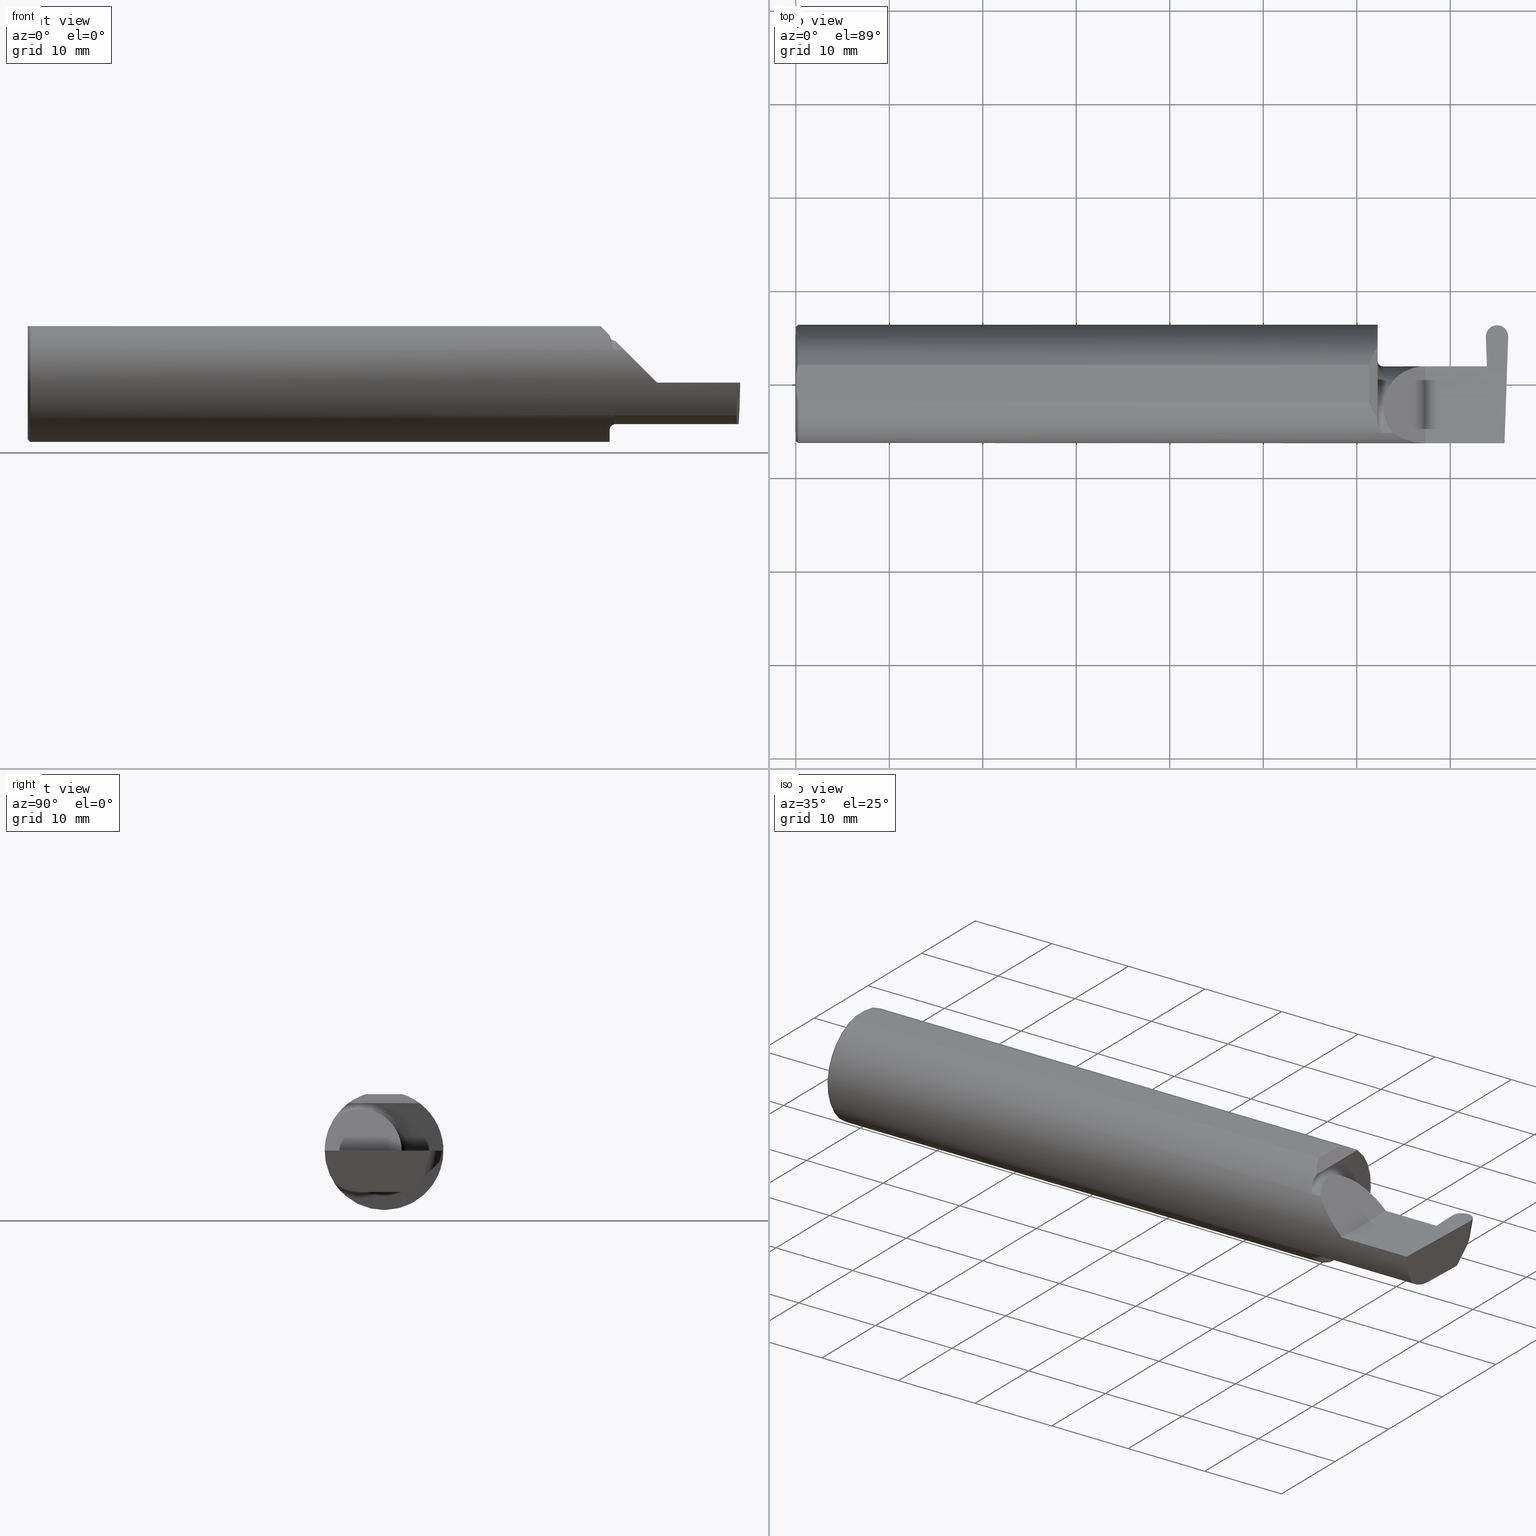
[diagram: canonical four-view strip — front | top / right | iso, engineering-drawing reading convention]
A machine part, canonical four-view strip (front | top / right | iso — engineering-drawing reading convention). The complete STEP part file that produces these views, byte-faithful:
ISO-10303-21;
HEADER;
FILE_DESCRIPTION (( 'STEP AP203' ),
    '1' );
FILE_NAME ('222470-GFR093-8.STEP',
    '2024-06-28T18:35:39',
    ( '' ),
    ( '' ),
    'SwSTEP 2.0',
    'SolidWorks 2024',
    '' );
FILE_SCHEMA (( 'CONFIG_CONTROL_DESIGN' ));
ENDSEC;

DATA;
#1 = PLANE ( 'NONE',  #439 ) ;
#2 = ORIENTED_EDGE ( 'NONE', *, *, #691, .F. ) ;
#3 = CARTESIAN_POINT ( 'NONE',  ( 2.983360130692194634, -0.2080850024789288044, -0.1382955322609671633 ) ) ;
#4 = CARTESIAN_POINT ( 'NONE',  ( 2.475000000000000089, -0.1008500000000001479, 0.000000000000000000 ) ) ;
#5 = ORIENTED_EDGE ( 'NONE', *, *, #133, .T. ) ;
#6 = EDGE_CURVE ( 'NONE', #606, #232, #318, .T. ) ;
#7 = FACE_OUTER_BOUND ( 'NONE', #765, .T. ) ;
#8 = DIRECTION ( 'NONE',  ( -1.000000000000000000, -0.000000000000000000, -0.000000000000000000 ) ) ;
#9 = AXIS2_PLACEMENT_3D ( 'NONE', #300, #639, #562 ) ;
#10 = ORIENTED_EDGE ( 'NONE', *, *, #691, .T. ) ;
#11 = LINE ( 'NONE', #18, #816 ) ;
#12 = VERTEX_POINT ( 'NONE', #221 ) ;
#13 = DIRECTION ( 'NONE',  ( 0.000000000000000000, 0.000000000000000000, 1.000000000000000000 ) ) ;
#14 = DIRECTION ( 'NONE',  ( 0.000000000000000000, 0.000000000000000000, 1.000000000000000000 ) ) ;
#15 = EDGE_CURVE ( 'NONE', #444, #462, #162, .T. ) ;
#16 = ORIENTED_EDGE ( 'NONE', *, *, #380, .T. ) ;
#17 = CARTESIAN_POINT ( 'NONE',  ( 2.983360130692194634, -0.2080850024789288044, -0.1382955322609671633 ) ) ;
#18 = CARTESIAN_POINT ( 'NONE',  ( 2.650000000000000355, -0.2500000000000000555, 4.286263797015729199E-17 ) ) ;
#19 = APPROVAL ( #847, 'UNSPECIFIED' ) ;
#20 =( BOUNDED_CURVE ( )  B_SPLINE_CURVE ( 3, ( #736, #798, #478, #672 ),
 .UNSPECIFIED., .F., .F. ) 
 B_SPLINE_CURVE_WITH_KNOTS ( ( 4, 4 ),
 ( 6.160376845738969820, 6.746954780470629132 ),
 .UNSPECIFIED. ) 
 CURVE ( )  GEOMETRIC_REPRESENTATION_ITEM ( )  RATIONAL_B_SPLINE_CURVE ( ( 1.000000000000000000, 0.9715321379117536349, 0.9715321379117536349, 1.000000000000000000 ) ) 
 REPRESENTATION_ITEM ( '' )  );
#21 = EDGE_LOOP ( 'NONE', ( #737, #799, #192, #610, #210 ) ) ;
#22 = AXIS2_PLACEMENT_3D ( 'NONE', #687, #636, #622 ) ;
#23 = PERSON ( 'UNSPECIFIED', 'UNSPECIFIED', 'UNSPECIFIED', ('UNSPECIFIED'), ('UNSPECIFIED'), ('UNSPECIFIED') ) ;
#24 = CARTESIAN_POINT ( 'NONE',  ( 0.009999999999999927350, 0.07650098038587520299, 0.2378499999999998671 ) ) ;
#25 = DIRECTION ( 'NONE',  ( 0.000000000000000000, -0.7071067811865435759, -0.7071067811865514585 ) ) ;
#26 = PRODUCT_RELATED_PRODUCT_CATEGORY ( 'detail', '', ( #700 ) ) ;
#27 = EDGE_LOOP ( 'NONE', ( #173, #750, #589, #773, #661, #742 ) ) ;
#28 = CARTESIAN_POINT ( 'NONE',  ( 2.924395885334045708, 0.2471499999999999253, 9.093799426912671490E-18 ) ) ;
#29 = CARTESIAN_POINT ( 'NONE',  ( 2.475000000000000089, -0.1008500000000001340, -0.2000000000000001221 ) ) ;
#30 = FACE_OUTER_BOUND ( 'NONE', #541, .T. ) ;
#31 = EDGE_CURVE ( 'NONE', #631, #330, #285, .T. ) ;
#32 = CARTESIAN_POINT ( 'NONE',  ( 2.450000000000000622, -0.1716188362992551730, -0.1820560320165483525 ) ) ;
#33 = EDGE_CURVE ( 'NONE', #127, #99, #490, .T. ) ;
#34 = LINE ( 'NONE', #713, #739 ) ;
#35 = AXIS2_PLACEMENT_3D ( 'NONE', #4, #592, #338 ) ;
#36 = DIRECTION ( 'NONE',  ( 1.000000000000000000, 0.000000000000000000, 0.000000000000000000 ) ) ;
#37 = FACE_OUTER_BOUND ( 'NONE', #602, .T. ) ;
#38 = ORIENTED_EDGE ( 'NONE', *, *, #767, .F. ) ;
#39 = DATE_AND_TIME ( #751, #802 ) ;
#40 = CARTESIAN_POINT ( 'NONE',  ( 2.905918923725884451, 0.1970717818336510108, 0.000000000000000000 ) ) ;
#41 = EDGE_CURVE ( 'NONE', #779, #161, #428, .T. ) ;
#42 = CARTESIAN_POINT ( 'NONE',  ( 0.000000000000000000, -0.03090954545120560767, 0.2378499999999998671 ) ) ;
#43 = ORIENTED_EDGE ( 'NONE', *, *, #540, .F. ) ;
#44 = PRODUCT_DEFINITION_SHAPE ( 'NONE', 'NONE',  #334 ) ;
#45 = EDGE_CURVE ( 'NONE', #213, #156, #299, .T. ) ;
#46 = ORIENTED_EDGE ( 'NONE', *, *, #644, .F. ) ;
#47 = ORGANIZATION ( 'UNSPECIFIED', 'UNSPECIFIED', '' ) ;
#48 = CARTESIAN_POINT ( 'NONE',  ( 2.420642670853159650, -0.1029056323555044700, 0.2293573291468382624 ) ) ;
#49 =( BOUNDED_CURVE ( )  B_SPLINE_CURVE ( 3, ( #488, #345, #797, #223 ),
 .UNSPECIFIED., .F., .T. ) 
 B_SPLINE_CURVE_WITH_KNOTS ( ( 4, 4 ),
 ( 4.712388980384689674, 5.298966915116348986 ),
 .UNSPECIFIED. ) 
 CURVE ( )  GEOMETRIC_REPRESENTATION_ITEM ( )  RATIONAL_B_SPLINE_CURVE ( ( 1.000000000000000000, 0.9715321379117536349, 0.9715321379117536349, 1.000000000000000000 ) ) 
 REPRESENTATION_ITEM ( '' )  );
#50 = ORIENTED_EDGE ( 'NONE', *, *, #555, .F. ) ;
#51 = VERTEX_POINT ( 'NONE', #181 ) ;
#52 = CARTESIAN_POINT ( 'NONE',  ( 2.996855212037247362, 0.1664162189566759098, -0.1144081181914932133 ) ) ;
#53 = DIRECTION ( 'NONE',  ( 0.000000000000000000, 0.000000000000000000, 1.000000000000000000 ) ) ;
#54 = EDGE_LOOP ( 'NONE', ( #320, #480, #155 ) ) ;
#55 = DIRECTION ( 'NONE',  ( 0.000000000000000000, 0.000000000000000000, 1.000000000000000000 ) ) ;
#56 = ADVANCED_FACE ( 'NONE', ( #30 ), #242, .T. ) ;
#57 = CARTESIAN_POINT ( 'NONE',  ( 2.412149999999998240, -0.07650098038587530014, 0.2378499999999998948 ) ) ;
#58 = VERTEX_POINT ( 'NONE', #360 ) ;
#59 = COORDINATED_UNIVERSAL_TIME_OFFSET ( 8, 0, .BEHIND. ) ;
#60 = CC_DESIGN_APPROVAL ( #675, ( #667 ) ) ;
#61 = LINE ( 'NONE', #120, #587 ) ;
#62 = AXIS2_PLACEMENT_3D ( 'NONE', #29, #292, #811 ) ;
#63 = ADVANCED_BREP_SHAPE_REPRESENTATION ( '222470-GFR093-8', ( #759, #827 ), #789 ) ;
#64 = ORIENTED_EDGE ( 'NONE', *, *, #31, .T. ) ;
#65 = PERSON_AND_ORGANIZATION_ROLE ( 'design_supplier' ) ;
#66 = CARTESIAN_POINT ( 'NONE',  ( 2.952921434999999928, 0.2437277550733770448, -0.01277199194210160843 ) ) ;
#67 = CARTESIAN_POINT ( 'NONE',  ( 2.908987657962752937, 0.1664162189566759653, -0.1144081181914931161 ) ) ;
#68 = ADVANCED_FACE ( 'NONE', ( #515 ), #572, .F. ) ;
#69 = ORIENTED_EDGE ( 'NONE', *, *, #837, .F. ) ;
#70 = DIRECTION ( 'NONE',  ( -1.000000000000000000, -0.000000000000000000, -0.000000000000000000 ) ) ;
#71 = CARTESIAN_POINT ( 'NONE',  ( 2.913374615485722963, 0.07109536363756185917, -0.1750000000000001277 ) ) ;
#72 = ORIENTED_EDGE ( 'NONE', *, *, #432, .T. ) ;
#73 = CC_DESIGN_PERSON_AND_ORGANIZATION_ASSIGNMENT ( #397, #65, ( #709 ) ) ;
#74 = DIRECTION ( 'NONE',  ( -1.000000000000000000, -0.000000000000000000, -0.000000000000000000 ) ) ;
#75 = CIRCLE ( 'NONE', #171, 0.1750000000000000444 ) ;
#76 = DIRECTION ( 'NONE',  ( 1.000000000000000000, 0.000000000000000000, 0.000000000000000000 ) ) ;
#77 = AXIS2_PLACEMENT_3D ( 'NONE', #398, #132, #718 ) ;
#78 = AXIS2_PLACEMENT_3D ( 'NONE', #90, #557, #117 ) ;
#79 = ORIENTED_EDGE ( 'NONE', *, *, #432, .F. ) ;
#80 = ADVANCED_FACE ( 'NONE', ( #451 ), #776, .T. ) ;
#81 = CARTESIAN_POINT ( 'NONE',  ( 2.475000000000000089, -0.2080850024789288599, 0.1382955322609669968 ) ) ;
#82 = DIRECTION ( 'NONE',  ( 0.7071067811865511255, 0.000000000000000000, -0.7071067811865439090 ) ) ;
#83 = ORIENTED_EDGE ( 'NONE', *, *, #359, .T. ) ;
#84 = FACE_OUTER_BOUND ( 'NONE', #821, .T. ) ;
#85 = CARTESIAN_POINT ( 'NONE',  ( 2.899134618722187362, 0.07411446490944718912, -0.002035803974313289428 ) ) ;
#86 = EDGE_LOOP ( 'NONE', ( #324, #396, #151, #342 ) ) ;
#87 = CARTESIAN_POINT ( 'NONE',  ( 2.690421435000000194, -0.2080850024789288044, -0.1382955322609671633 ) ) ;
#88 = CARTESIAN_POINT ( 'NONE',  ( 0.000000000000000000, 0.000000000000000000, 0.000000000000000000 ) ) ;
#89 = VECTOR ( 'NONE', #806, 39.37007874015748854 ) ;
#90 = CARTESIAN_POINT ( 'NONE',  ( 0.000000000000000000, 0.000000000000000000, 0.000000000000000000 ) ) ;
#91 = AXIS2_PLACEMENT_3D ( 'NONE', #251, #8, #137 ) ;
#92 = ORIENTED_EDGE ( 'NONE', *, *, #369, .T. ) ;
#93 = CARTESIAN_POINT ( 'NONE',  ( 2.913428848522521708, -0.1008500000000001479, -0.1750000000000000444 ) ) ;
#94 = APPLICATION_CONTEXT ( 'configuration controlled 3d designs of mechanical parts and assemblies' ) ;
#95 = CARTESIAN_POINT ( 'NONE',  ( 2.487690731615565642, -0.1771157075472507003, 0.1623092683844333250 ) ) ;
#96 = ADVANCED_FACE ( 'NONE', ( #824 ), #830, .F. ) ;
#97 = DIRECTION ( 'NONE',  ( -1.000000000000000000, -0.000000000000000000, -0.000000000000000000 ) ) ;
#98 = EDGE_CURVE ( 'NONE', #688, #498, #505, .T. ) ;
#99 = VERTEX_POINT ( 'NONE', #772 ) ;
#100 =( LENGTH_UNIT ( ) NAMED_UNIT ( * ) SI_UNIT ( $, .METRE. ) );
#101 = DIRECTION ( 'NONE',  ( 0.000000000000000000, -1.000000000000000000, 0.000000000000000000 ) ) ;
#102 = ORIENTED_EDGE ( 'NONE', *, *, #224, .T. ) ;
#103 = CARTESIAN_POINT ( 'NONE',  ( 2.450000000000000178, -0.1616050818046600723, 0.1905487340154983222 ) ) ;
#104 = VECTOR ( 'NONE', #82, 39.37007874015748143 ) ;
#105 = DIRECTION ( 'NONE',  ( 0.000000000000000000, 0.000000000000000000, -1.000000000000000000 ) ) ;
#106 = VECTOR ( 'NONE', #169, 39.37007874015748854 ) ;
#107 = ADVANCED_FACE ( 'NONE', ( #122 ), #643, .F. ) ;
#108 = CARTESIAN_POINT ( 'NONE',  ( 3.000942059314616550, 0.2262267247321108621, 2.658190119782672195E-18 ) ) ;
#109 = ORIENTED_EDGE ( 'NONE', *, *, #448, .F. ) ;
#110 = MECHANICAL_CONTEXT ( 'NONE', #182, 'mechanical' ) ;
#111 = CARTESIAN_POINT ( 'NONE',  ( 2.952874015799872964, 0.1988029421707689093, 0.001160379127183837908 ) ) ;
#112 = DIRECTION ( 'NONE',  ( 0.000000000000000000, 0.000000000000000000, 1.000000000000000000 ) ) ;
#113 = EDGE_CURVE ( 'NONE', #558, #579, #402, .T. ) ;
#114 = ORIENTED_EDGE ( 'NONE', *, *, #723, .T. ) ;
#115 = PERSON_AND_ORGANIZATION ( #23, #47 ) ;
#116 = DIRECTION ( 'NONE',  ( 0.000000000000000000, -0.9998476951563912696, 0.01745240643728358451 ) ) ;
#117 = DIRECTION ( 'NONE',  ( 0.000000000000000000, 0.000000000000000000, -1.000000000000000000 ) ) ;
#118 = ORIENTED_EDGE ( 'NONE', *, *, #31, .F. ) ;
#119 = AXIS2_PLACEMENT_3D ( 'NONE', #270, #650, #250 ) ;
#120 = CARTESIAN_POINT ( 'NONE',  ( 3.402190948718818220, -0.1008500000000001340, -0.1750000000000000722 ) ) ;
#121 = CIRCLE ( 'NONE', #205, 0.02500000000000007425 ) ;
#122 = FACE_OUTER_BOUND ( 'NONE', #511, .T. ) ;
#123 = ORIENTED_EDGE ( 'NONE', *, *, #212, .F. ) ;
#124 = ADVANCED_FACE ( 'NONE', ( #838 ), #711, .F. ) ;
#125 = CARTESIAN_POINT ( 'NONE',  ( 2.464343523383979218, -0.2041337200786082218, 0.1440846171672514053 ) ) ;
#126 = CARTESIAN_POINT ( 'NONE',  ( 2.450000000000000178, -0.1616050818046600723, -0.1905487340154983222 ) ) ;
#127 = VERTEX_POINT ( 'NONE', #583 ) ;
#128 = PERSON_AND_ORGANIZATION ( #23, #47 ) ;
#129 = CARTESIAN_POINT ( 'NONE',  ( 2.475000000000000089, -0.2080850024789288599, 0.1382955322609669968 ) ) ;
#130 = VERTEX_POINT ( 'NONE', #596 ) ;
#131 = PERSON_AND_ORGANIZATION_ROLE ( 'creator' ) ;
#132 = DIRECTION ( 'NONE',  ( -0.9992386149554828290, 0.03489418134010630057, 0.01745240643728358798 ) ) ;
#133 = EDGE_CURVE ( 'NONE', #232, #668, #170, .T. ) ;
#134 = LINE ( 'NONE', #328, #726 ) ;
#135 = VERTEX_POINT ( 'NONE', #57 ) ;
#136 = LINE ( 'NONE', #595, #845 ) ;
#137 = DIRECTION ( 'NONE',  ( 0.000000000000000000, 0.000000000000000000, 1.000000000000000000 ) ) ;
#138 = EDGE_LOOP ( 'NONE', ( #544, #421, #50 ) ) ;
#139 = CARTESIAN_POINT ( 'NONE',  ( 2.468863362722769406, -0.2068301641248767586, -0.1401678546132363867 ) ) ;
#140 = DIRECTION ( 'NONE',  ( 1.000000000000000000, -0.000000000000000000, -0.000000000000000000 ) ) ;
#141 = ADVANCED_FACE ( 'NONE', ( #474 ), #714, .T. ) ;
#142 = ORIENTED_EDGE ( 'NONE', *, *, #284, .F. ) ;
#143 = LINE ( 'NONE', #665, #466 ) ;
#144 = AXIS2_PLACEMENT_3D ( 'NONE', #401, #266, #456 ) ;
#145 = FACE_OUTER_BOUND ( 'NONE', #512, .T. ) ;
#146 = AXIS2_PLACEMENT_3D ( 'NONE', #719, #730, #191 ) ;
#147 = VECTOR ( 'NONE', #504, 39.37007874015748854 ) ;
#148 = ORIENTED_EDGE ( 'NONE', *, *, #655, .F. ) ;
#149 = CYLINDRICAL_SURFACE ( 'NONE', #682, 0.04700000000000001399 ) ;
#150 = FACE_OUTER_BOUND ( 'NONE', #261, .T. ) ;
#151 = ORIENTED_EDGE ( 'NONE', *, *, #617, .T. ) ;
#152 = FACE_OUTER_BOUND ( 'NONE', #516, .T. ) ;
#153 = CARTESIAN_POINT ( 'NONE',  ( 2.450000000000000178, 0.07414999999999995206, 6.735557395310435121E-17 ) ) ;
#154 = B_SPLINE_CURVE_WITH_KNOTS ( 'NONE', 3,
 ( #807, #605, #158, #24 ),
 .UNSPECIFIED., .F., .F.,
 ( 4, 4 ),
 ( 0.01593449416844765903, 0.01712021724825598876 ),
 .UNSPECIFIED. ) ;
#155 = ORIENTED_EDGE ( 'NONE', *, *, #168, .T. ) ;
#156 = VERTEX_POINT ( 'NONE', #126 ) ;
#157 = CARTESIAN_POINT ( 'NONE',  ( 2.910211446934811264, 0.07414999999999995206, 0.000000000000000000 ) ) ;
#158 = CARTESIAN_POINT ( 'NONE',  ( 0.005466242398876407227, 0.06169385855649833772, 0.2378499999999998671 ) ) ;
#159 = EDGE_CURVE ( 'NONE', #594, #521, #239, .T. ) ;
#160 = EDGE_CURVE ( 'NONE', #307, #558, #788, .T. ) ;
#161 = VERTEX_POINT ( 'NONE', #71 ) ;
#162 = CIRCLE ( 'NONE', #358, 0.2000000000000001221 ) ;
#163 = APPROVAL_DATE_TIME ( #39, #495 ) ;
#164 = CARTESIAN_POINT ( 'NONE',  ( 0.005459900170181729989, -0.06167314502012864741, 0.2378499999999998671 ) ) ;
#165 = ORIENTED_EDGE ( 'NONE', *, *, #113, .F. ) ;
#166 = APPLICATION_PROTOCOL_DEFINITION ( 'international standard', 'config_control_design', 1994, #94 ) ;
#167 = CARTESIAN_POINT ( 'NONE',  ( 2.980657859912265728, 0.2340679672696867886, -0.04675636987848154347 ) ) ;
#168 = EDGE_CURVE ( 'NONE', #462, #449, #258, .T. ) ;
#169 = DIRECTION ( 'NONE',  ( 0.02590004391968206074, -0.2587322210431824421, -0.9656017944882974158 ) ) ;
#170 =( BOUNDED_CURVE ( )  B_SPLINE_CURVE ( 3, ( #333, #781, #663, #777 ),
 .UNSPECIFIED., .F., .F. ) 
 B_SPLINE_CURVE_WITH_KNOTS ( ( 4, 4 ),
 ( 1.556556287886220469, 3.137579012548759039 ),
 .UNSPECIFIED. ) 
 CURVE ( )  GEOMETRIC_REPRESENTATION_ITEM ( )  RATIONAL_B_SPLINE_CURVE ( ( 1.000000000000000000, 0.8023213171586003334, 0.8023213171586003334, 1.000000000000000000 ) ) 
 REPRESENTATION_ITEM ( '' )  );
#171 = AXIS2_PLACEMENT_3D ( 'NONE', #585, #263, #55 ) ;
#172 = AXIS2_PLACEMENT_3D ( 'NONE', #633, #116, #817 ) ;
#173 = ORIENTED_EDGE ( 'NONE', *, *, #644, .T. ) ;
#174 = CARTESIAN_POINT ( 'NONE',  ( 2.475000000000000089, -0.1008500000000001340, 0.000000000000000000 ) ) ;
#175 = CC_DESIGN_DATE_AND_TIME_ASSIGNMENT ( #455, #196, ( #334 ) ) ;
#176 = CARTESIAN_POINT ( 'NONE',  ( 2.420642670853159650, 0.1029056323555044006, 0.2293573291468383180 ) ) ;
#177 = ORIENTED_EDGE ( 'NONE', *, *, #501, .T. ) ;
#178 = ORIENTED_EDGE ( 'NONE', *, *, #749, .F. ) ;
#179 = APPROVAL_STATUS ( 'not_yet_approved' ) ;
#180 = CC_DESIGN_PERSON_AND_ORGANIZATION_ASSIGNMENT ( #575, #513, ( #667 ) ) ;
#181 = CARTESIAN_POINT ( 'NONE',  ( 0.000000000000000000, 0.000000000000000000, -0.2398500000000001742 ) ) ;
#182 = APPLICATION_CONTEXT ( 'configuration controlled 3d designs of mechanical parts and assemblies' ) ;
#183 = ORIENTED_EDGE ( 'NONE', *, *, #159, .F. ) ;
#184 = DATE_AND_TIME ( #249, #725 ) ;
#185 = CARTESIAN_POINT ( 'NONE',  ( 2.452968662030529323, -0.1849684355203375929, 0.1680843977756270868 ) ) ;
#186 = ORIENTED_EDGE ( 'NONE', *, *, #717, .T. ) ;
#187 = EDGE_CURVE ( 'NONE', #293, #335, #603, .T. ) ;
#188 = APPROVAL_PERSON_ORGANIZATION ( #436, #495, #382 ) ;
#189 = EDGE_LOOP ( 'NONE', ( #243, #69, #569, #702, #528, #683, #118, #835, #786, #484 ) ) ;
#190 = FACE_OUTER_BOUND ( 'NONE', #808, .T. ) ;
#191 = DIRECTION ( 'NONE',  ( 0.000000000000000000, 0.000000000000000000, 1.000000000000000000 ) ) ;
#192 = ORIENTED_EDGE ( 'NONE', *, *, #553, .F. ) ;
#193 = CARTESIAN_POINT ( 'NONE',  ( 2.450367168219774516, -0.1713400252854600514, 0.1819601557798508629 ) ) ;
#194 = DIRECTION ( 'NONE',  ( 0.000000000000000000, -1.000000000000000000, 0.000000000000000000 ) ) ;
#195 = ORIENTED_EDGE ( 'NONE', *, *, #795, .T. ) ;
#196 = DATE_TIME_ROLE ( 'creation_date' ) ;
#197 = EDGE_CURVE ( 'NONE', #161, #606, #134, .T. ) ;
#198 = DIRECTION ( 'NONE',  ( -0.7071067811865511255, 0.000000000000000000, 0.7071067811865439090 ) ) ;
#199 = CARTESIAN_POINT ( 'NONE',  ( 2.952921434999999928, 0.2348123830215256280, -0.04601195412664269707 ) ) ;
#200 =( BOUNDED_CURVE ( )  B_SPLINE_CURVE ( 3, ( #236, #176, #640, #234 ),
 .UNSPECIFIED., .F., .F. ) 
 B_SPLINE_CURVE_WITH_KNOTS ( ( 4, 4 ),
 ( 0.3111857320071445554, 0.6427002007837618880 ),
 .UNSPECIFIED. ) 
 CURVE ( )  GEOMETRIC_REPRESENTATION_ITEM ( )  RATIONAL_B_SPLINE_CURVE ( ( 1.000000000000000000, 0.9908624633578577701, 0.9908624633578577701, 1.000000000000000000 ) ) 
 REPRESENTATION_ITEM ( '' )  );
#201 = ORIENTED_EDGE ( 'NONE', *, *, #433, .T. ) ;
#202 = APPROVAL_PERSON_ORGANIZATION ( #707, #19, #658 ) ;
#203 = CARTESIAN_POINT ( 'NONE',  ( 2.450000000000000178, -0.1616050818046600723, 0.1905487340154983222 ) ) ;
#204 = EDGE_CURVE ( 'NONE', #462, #213, #468, .T. ) ;
#205 = AXIS2_PLACEMENT_3D ( 'NONE', #586, #323, #518 ) ;
#206 = CARTESIAN_POINT ( 'NONE',  ( -0.002039370078740339320, 0.2471499999999999808, 0.000000000000000000 ) ) ;
#207 = VERTEX_POINT ( 'NONE', #651 ) ;
#208 = CARTESIAN_POINT ( 'NONE',  ( 2.450000000000000178, -0.1008500000000001340, 0.000000000000000000 ) ) ;
#209 = DIRECTION ( 'NONE',  ( -0.02590004391968220646, -0.2587322210431824421, -0.9656017944882975268 ) ) ;
#210 = ORIENTED_EDGE ( 'NONE', *, *, #168, .F. ) ;
#211 = CARTESIAN_POINT ( 'NONE',  ( 2.986463790105515770, -0.1008500000000001340, -0.1750000000000000722 ) ) ;
#212 = EDGE_CURVE ( 'NONE', #579, #668, #260, .T. ) ;
#213 = VERTEX_POINT ( 'NONE', #794 ) ;
#214 = CARTESIAN_POINT ( 'NONE',  ( 2.913397403057193191, -0.001152430219566465564, -0.1750000000000001832 ) ) ;
#215 = AXIS2_PLACEMENT_3D ( 'NONE', #208, #74, #13 ) ;
#216 = DIRECTION ( 'NONE',  ( 0.000000000000000000, 0.000000000000000000, -1.000000000000000000 ) ) ;
#217 = VECTOR ( 'NONE', #237, 39.37007874015748854 ) ;
#218 = ORIENTED_EDGE ( 'NONE', *, *, #379, .F. ) ;
#219 = CARTESIAN_POINT ( 'NONE',  ( 2.905918923725884451, 0.1970717818336510108, 0.000000000000000000 ) ) ;
#220 = CARTESIAN_POINT ( 'NONE',  ( 2.899099083631634599, 0.07407892981889442618, -0.004071607948626578856 ) ) ;
#221 = CARTESIAN_POINT ( 'NONE',  ( 2.899170153812740125, 0.07414999999999995206, 0.000000000000000000 ) ) ;
#222 = EDGE_CURVE ( 'NONE', #294, #594, #805, .T. ) ;
#223 = CARTESIAN_POINT ( 'NONE',  ( 2.511704467739031887, -0.2080850024789287211, 0.1382955322609671911 ) ) ;
#224 = EDGE_CURVE ( 'NONE', #462, #293, #121, .T. ) ;
#225 = DIRECTION ( 'NONE',  ( -0.000000000000000000, 1.000000000000000000, -0.000000000000000000 ) ) ;
#226 = ORIENTED_EDGE ( 'NONE', *, *, #245, .F. ) ;
#227 = CARTESIAN_POINT ( 'NONE',  ( 2.511704467739031887, -0.2080850024789287211, 0.1382955322609671911 ) ) ;
#228 = VECTOR ( 'NONE', #581, 39.37007874015748143 ) ;
#229 = AXIS2_PLACEMENT_3D ( 'NONE', #487, #812, #746 ) ;
#230 = CARTESIAN_POINT ( 'NONE',  ( 2.450000000000000178, -0.1008500000000001340, 0.1999999999999983180 ) ) ;
#231 = ADVANCED_FACE ( 'NONE', ( #656 ), #1, .T. ) ;
#232 = VERTEX_POINT ( 'NONE', #67 ) ;
#233 = APPLICATION_PROTOCOL_DEFINITION ( 'international standard', 'config_control_design', 1994, #182 ) ;
#234 = CARTESIAN_POINT ( 'NONE',  ( 2.450000000000000178, 0.1497498664440162219, 0.1999999999999983180 ) ) ;
#235 = FACE_OUTER_BOUND ( 'NONE', #731, .T. ) ;
#236 = CARTESIAN_POINT ( 'NONE',  ( 2.412149999999998240, 0.07650098038587530014, 0.2378499999999998948 ) ) ;
#237 = DIRECTION ( 'NONE',  ( -0.03489949670249305885, 0.9993908270190959842, -0.000000000000000000 ) ) ;
#238 = VECTOR ( 'NONE', #662, 39.37007874015748143 ) ;
#239 = CIRCLE ( 'NONE', #372, 0.2498499999999999888 ) ;
#240 = EDGE_LOOP ( 'NONE', ( #698, #648, #83 ) ) ;
#241 = CARTESIAN_POINT ( 'NONE',  ( 2.450000000000000178, -0.1497498664440161942, 0.1999999999999983180 ) ) ;
#242 = CYLINDRICAL_SURFACE ( 'NONE', #229, 0.2498499999999999888 ) ;
#243 = ORIENTED_EDGE ( 'NONE', *, *, #767, .T. ) ;
#244 = APPROVAL_ROLE ( '' ) ;
#245 = EDGE_CURVE ( 'NONE', #51, #594, #465, .T. ) ;
#246 = DIRECTION ( 'NONE',  ( 0.000000000000000000, 0.9659258262890682012, -0.2588190451025209615 ) ) ;
#247 = CARTESIAN_POINT ( 'NONE',  ( 2.913428897145816432, -0.1010041597270659730, -0.1750000000000000722 ) ) ;
#248 = ORIENTED_EDGE ( 'NONE', *, *, #197, .F. ) ;
#249 = CALENDAR_DATE ( 2024, 28, 6 ) ;
#250 = DIRECTION ( 'NONE',  ( 0.000000000000000000, 0.000000000000000000, -1.000000000000000000 ) ) ;
#251 = CARTESIAN_POINT ( 'NONE',  ( 2.450000000000000178, -0.1008500000000001340, 0.000000000000000000 ) ) ;
#252 = VECTOR ( 'NONE', #566, 39.37007874015748854 ) ;
#253 = ORIENTED_EDGE ( 'NONE', *, *, #749, .T. ) ;
#254 = DATE_AND_TIME ( #262, #269 ) ;
#255 = CLOSED_SHELL ( 'NONE', ( #107, #124, #80, #389, #56, #276, #627, #580, #68, #598, #354, #302, #312, #231, #141, #671, #705, #452, #96, #479, #564, #818, #755, #493 ) ) ;
#256 = LINE ( 'NONE', #836, #238 ) ;
#257 = AXIS2_PLACEMENT_3D ( 'NONE', #111, #377, #246 ) ;
#258 = LINE ( 'NONE', #471, #482 ) ;
#259 = EDGE_CURVE ( 'NONE', #525, #734, #20, .T. ) ;
#260 =( BOUNDED_CURVE ( )  B_SPLINE_CURVE ( 3, ( #395, #272, #536, #199 ),
 .UNSPECIFIED., .F., .F. ) 
 B_SPLINE_CURVE_WITH_KNOTS ( ( 4, 4 ),
 ( 4.712388980384682569, 4.731354904357337077 ),
 .UNSPECIFIED. ) 
 CURVE ( )  GEOMETRIC_REPRESENTATION_ITEM ( )  RATIONAL_B_SPLINE_CURVE ( ( 1.000000000000000000, 0.9999700247019541743, 0.9999700247019541743, 1.000000000000000000 ) ) 
 REPRESENTATION_ITEM ( '' )  );
#261 = EDGE_LOOP ( 'NONE', ( #754, #339, #361, #496 ) ) ;
#262 = CALENDAR_DATE ( 2024, 28, 6 ) ;
#263 = DIRECTION ( 'NONE',  ( -1.000000000000000000, -0.000000000000000000, -0.000000000000000000 ) ) ;
#264 = DIRECTION ( 'NONE',  ( 1.000000000000000000, 0.000000000000000000, 0.000000000000000000 ) ) ;
#265 = EDGE_LOOP ( 'NONE', ( #791, #642, #673, #16 ) ) ;
#266 = DIRECTION ( 'NONE',  ( -1.224646799147351975E-16, 0.000000000000000000, -1.000000000000000000 ) ) ;
#267 = CARTESIAN_POINT ( 'NONE',  ( 0.009999999999999927350, 0.000000000000000000, 0.000000000000000000 ) ) ;
#268 = ORIENTED_EDGE ( 'NONE', *, *, #593, .T. ) ;
#269 = LOCAL_TIME ( 11, 35, 39.00000000000000000, #59 ) ;
#270 = CARTESIAN_POINT ( 'NONE',  ( 0.000000000000000000, 0.000000000000000000, 0.000000000000000000 ) ) ;
#271 = VECTOR ( 'NONE', #364, 39.37007874015748143 ) ;
#272 = CARTESIAN_POINT ( 'NONE',  ( 2.952921434999999928, 0.2407584634867069862, -0.02385353900604100102 ) ) ;
#273 = ORIENTED_EDGE ( 'NONE', *, *, #113, .T. ) ;
#274 = CARTESIAN_POINT ( 'NONE',  ( 2.984022185481226774, -0.1771157075472506726, -0.1623092683844333528 ) ) ;
#275 = UNCERTAINTY_MEASURE_WITH_UNIT (LENGTH_MEASURE( 1.000000000000000082E-05 ), #440, 'distance_accuracy_value', 'NONE');
#276 = ADVANCED_FACE ( 'NONE', ( #145 ), #612, .F. ) ;
#277 = ORIENTED_EDGE ( 'NONE', *, *, #803, .F. ) ;
#278 = CARTESIAN_POINT ( 'NONE',  ( 2.910211446934811264, 0.07414999999999995206, 0.000000000000000000 ) ) ;
#279 = PLANE ( 'NONE',  #313 ) ;
#280 = ORIENTED_EDGE ( 'NONE', *, *, #259, .F. ) ;
#281 = AXIS2_PLACEMENT_3D ( 'NONE', #362, #620, #291 ) ;
#282 = LINE ( 'NONE', #153, #697 ) ;
#283 = VECTOR ( 'NONE', #140, 39.37007874015748143 ) ;
#284 = EDGE_CURVE ( 'NONE', #207, #472, #11, .T. ) ;
#285 = LINE ( 'NONE', #443, #271 ) ;
#286 = B_SPLINE_CURVE_WITH_KNOTS ( 'NONE', 3,
 ( #203, #535, #193, #848, #185, #322, #460, #517, #125, #390, #394, #654, #326, #129 ),
 .UNSPECIFIED., .F., .F.,
 ( 4, 2, 2, 2, 2, 2, 4 ),
 ( 0.0003834465838148112338, 0.0008781406165086604390, 0.001372834649202509753, 0.001867528681896358633, 0.002114875698243288710, 0.002238549206416754183, 0.002362222714590220089 ),
 .UNSPECIFIED. ) ;
#287 = CARTESIAN_POINT ( 'NONE',  ( 2.904900810685382861, 0.2262267247321106678, 1.148125750367493843E-17 ) ) ;
#288 = FACE_OUTER_BOUND ( 'NONE', #27, .T. ) ;
#289 = CARTESIAN_POINT ( 'NONE',  ( 2.905871548989777509, 0.1984284167760241857, 0.000000000000000000 ) ) ;
#290 = ORIENTED_EDGE ( 'NONE', *, *, #197, .T. ) ;
#291 = DIRECTION ( 'NONE',  ( 0.000000000000000000, 0.000000000000000000, -1.000000000000000000 ) ) ;
#292 = DIRECTION ( 'NONE',  ( -0.000000000000000000, 1.000000000000000000, 1.224646799147353207E-16 ) ) ;
#293 = VERTEX_POINT ( 'NONE', #350 ) ;
#294 = VERTEX_POINT ( 'NONE', #353 ) ;
#295 = DIRECTION ( 'NONE',  ( 1.000000000000000000, 0.000000000000000000, 0.000000000000000000 ) ) ;
#296 = EDGE_CURVE ( 'NONE', #99, #521, #154, .T. ) ;
#297 = CARTESIAN_POINT ( 'NONE',  ( 2.650000000000000355, 0.07414999999999984104, 4.286263797015729199E-17 ) ) ;
#298 = DIMENSIONAL_EXPONENTS ( 1.000000000000000000, 0.000000000000000000, 0.000000000000000000, 0.000000000000000000, 0.000000000000000000, 0.000000000000000000, 0.000000000000000000 ) ;
#299 = CIRCLE ( 'NONE', #22, 0.2000000000000001221 ) ;
#300 = CARTESIAN_POINT ( 'NONE',  ( 2.914374952050851508, -2.845228123214176286, -0.1794551390957415116 ) ) ;
#301 = DIRECTION ( 'NONE',  ( 0.000000000000000000, -0.9659258262890682012, 0.2588190451025209615 ) ) ;
#302 = ADVANCED_FACE ( 'NONE', ( #741 ), #685, .F. ) ;
#303 = ORIENTED_EDGE ( 'NONE', *, *, #187, .T. ) ;
#304 = CARTESIAN_POINT ( 'NONE',  ( 2.450000000000000178, -0.1616050818046600723, -0.1905487340154983222 ) ) ;
#305 = CARTESIAN_POINT ( 'NONE',  ( 2.952921434999999928, 0.2348123830215256280, -0.04601195412664269707 ) ) ;
#306 = CC_DESIGN_DATE_AND_TIME_ASSIGNMENT ( #254, #721, ( #667 ) ) ;
#307 = VERTEX_POINT ( 'NONE', #426 ) ;
#308 = CARTESIAN_POINT ( 'NONE',  ( 2.458176740666624838, -0.1972027065478071106, -0.1535263573771916135 ) ) ;
#309 = LINE ( 'NONE', #510, #483 ) ;
#310 = DIRECTION ( 'NONE',  ( -0.0003154085283454242548, 0.9999999502587288980, -1.223178646569383438E-16 ) ) ;
#311 = CIRCLE ( 'NONE', #409, 0.1750000000000000444 ) ;
#312 = ADVANCED_FACE ( 'NONE', ( #150 ), #279, .T. ) ;
#313 = AXIS2_PLACEMENT_3D ( 'NONE', #543, #416, #216 ) ;
#314 = ORIENTED_EDGE ( 'NONE', *, *, #540, .T. ) ;
#315 = CALENDAR_DATE ( 2024, 28, 6 ) ;
#316 = EDGE_CURVE ( 'NONE', #330, #12, #577, .T. ) ;
#317 = DIRECTION ( 'NONE',  ( 0.000000000000000000, 0.000000000000000000, -1.000000000000000000 ) ) ;
#318 = LINE ( 'NONE', #578, #534 ) ;
#319 =( BOUNDED_CURVE ( )  B_SPLINE_CURVE ( 3, ( #305, #167, #435, #52 ),
 .UNSPECIFIED., .F., .T. ) 
 B_SPLINE_CURVE_WITH_KNOTS ( ( 4, 4 ),
 ( 3.145606294630826749, 4.726629019293366873 ),
 .UNSPECIFIED. ) 
 CURVE ( )  GEOMETRIC_REPRESENTATION_ITEM ( )  RATIONAL_B_SPLINE_CURVE ( ( 1.000000000000000000, 0.8023213171585998893, 0.8023213171585998893, 1.000000000000000000 ) ) 
 REPRESENTATION_ITEM ( '' )  );
#320 = ORIENTED_EDGE ( 'NONE', *, *, #403, .T. ) ;
#321 = PERSON_AND_ORGANIZATION ( #23, #47 ) ;
#322 = CARTESIAN_POINT ( 'NONE',  ( 2.456159563508734323, -0.1933019864360847051, 0.1584298865564834624 ) ) ;
#323 = DIRECTION ( 'NONE',  ( 0.000000000000000000, -1.000000000000000000, 0.000000000000000000 ) ) ;
#324 = ORIENTED_EDGE ( 'NONE', *, *, #224, .F. ) ;
#325 = APPROVAL_DATE_TIME ( #184, #675 ) ;
#326 = CARTESIAN_POINT ( 'NONE',  ( 2.473329956043142985, -0.2080850024798588660, 0.1382955322595678660 ) ) ;
#327 = EDGE_CURVE ( 'NONE', #388, #293, #405, .T. ) ;
#328 = CARTESIAN_POINT ( 'NONE',  ( 2.919967132617691696, -0.1176896267254947115, -0.1750000000000000722 ) ) ;
#329 = AXIS2_PLACEMENT_3D ( 'NONE', #761, #295, #105 ) ;
#330 = VERTEX_POINT ( 'NONE', #347 ) ;
#331 = CIRCLE ( 'NONE', #62, 0.02500000000000007425 ) ;
#332 = PLANE ( 'NONE',  #626 ) ;
#333 = CARTESIAN_POINT ( 'NONE',  ( 2.908987657962752937, 0.1664162189566759653, -0.1144081181914931161 ) ) ;
#334 = PRODUCT_DEFINITION ( 'UNKNOWN', '', #709, #477 ) ;
#335 = VERTEX_POINT ( 'NONE', #748 ) ;
#336 = COORDINATED_UNIVERSAL_TIME_OFFSET ( 8, 0, .BEHIND. ) ;
#337 = FACE_OUTER_BOUND ( 'NONE', #434, .T. ) ;
#338 = DIRECTION ( 'NONE',  ( 0.000000000000000000, 0.000000000000000000, 1.000000000000000000 ) ) ;
#339 = ORIENTED_EDGE ( 'NONE', *, *, #459, .T. ) ;
#340 = LINE ( 'NONE', #787, #491 ) ;
#341 = DIRECTION ( 'NONE',  ( -1.000000000000000000, -0.000000000000000000, -0.000000000000000000 ) ) ;
#342 = ORIENTED_EDGE ( 'NONE', *, *, #555, .T. ) ;
#343 = EDGE_CURVE ( 'NONE', #472, #12, #282, .T. ) ;
#344 = LOCAL_TIME ( 11, 35, 39.00000000000000000, #716 ) ;
#345 = CARTESIAN_POINT ( 'NONE',  ( 2.600434159100402987, -0.2498499999999999610, 0.04956584089959713973 ) ) ;
#346 = CC_DESIGN_PERSON_AND_ORGANIZATION_ASSIGNMENT ( #321, #131, ( #334 ) ) ;
#347 = CARTESIAN_POINT ( 'NONE',  ( 2.899063548541081836, 0.07404339472834166325, -0.006107411922939877391 ) ) ;
#348 = ORIENTED_EDGE ( 'NONE', *, *, #204, .F. ) ;
#349 = CARTESIAN_POINT ( 'NONE',  ( 2.984317093749864647, -0.2498499999999999888, 0.000000000000000000 ) ) ;
#350 = CARTESIAN_POINT ( 'NONE',  ( 2.475000000000000089, -0.1008500000000001340, 0.1749999999999984346 ) ) ;
#351 = ORIENTED_EDGE ( 'NONE', *, *, #296, .T. ) ;
#352 = DIRECTION ( 'NONE',  ( -0.02590004391968220646, -0.2587322210431824976, -0.9656017944882975268 ) ) ;
#353 = CARTESIAN_POINT ( 'NONE',  ( 0.009999999999999927350, -0.07650098038587520299, 0.2378499999999998671 ) ) ;
#354 = ADVANCED_FACE ( 'NONE', ( #288 ), #492, .T. ) ;
#355 = ORIENTED_EDGE ( 'NONE', *, *, #810, .T. ) ;
#356 = CARTESIAN_POINT ( 'NONE',  ( 2.952921434999999928, 0.2348123830215256280, -0.04601195412664269707 ) ) ;
#357 = DIRECTION ( 'NONE',  ( -1.000000000000000000, -0.000000000000000000, -0.000000000000000000 ) ) ;
#358 = AXIS2_PLACEMENT_3D ( 'NONE', #647, #97, #112 ) ;
#359 = EDGE_CURVE ( 'NONE', #51, #127, #453, .T. ) ;
#360 = CARTESIAN_POINT ( 'NONE',  ( 2.475000000000000089, -0.2080850024789288599, -0.1382955322609670246 ) ) ;
#361 = ORIENTED_EDGE ( 'NONE', *, *, #204, .T. ) ;
#362 = CARTESIAN_POINT ( 'NONE',  ( 0.000000000000000000, 0.000000000000000000, 0.000000000000000000 ) ) ;
#363 = CARTESIAN_POINT ( 'NONE',  ( 2.475000000000000089, -0.1008500000000001340, 0.1749999999999984346 ) ) ;
#364 = DIRECTION ( 'NONE',  ( -1.000000000000000000, -0.000000000000000000, -0.000000000000000000 ) ) ;
#365 = ORIENTED_EDGE ( 'NONE', *, *, #98, .F. ) ;
#366 = CARTESIAN_POINT ( 'NONE',  ( 2.475000000000000089, -0.1008500000000001340, 0.1749999999999984346 ) ) ;
#367 = CARTESIAN_POINT ( 'NONE',  ( -0.002039370078740339320, 0.2471499999999999808, 0.000000000000000000 ) ) ;
#368 = CARTESIAN_POINT ( 'NONE',  ( 2.993681016992925770, 0.1058243371481696476, -0.1750000000000001277 ) ) ;
#369 = EDGE_CURVE ( 'NONE', #213, #335, #331, .T. ) ;
#370 = DIRECTION ( 'NONE',  ( 0.000000000000000000, -0.2588190451025209615, -0.9659258262890682012 ) ) ;
#371 = LOCAL_TIME ( 11, 35, 39.00000000000000000, #336 ) ;
#372 = AXIS2_PLACEMENT_3D ( 'NONE', #267, #531, #407 ) ;
#373 = AXIS2_PLACEMENT_3D ( 'NONE', #690, #375, #699 ) ;
#374 = COORDINATED_UNIVERSAL_TIME_OFFSET ( 8, 0, .BEHIND. ) ;
#375 = DIRECTION ( 'NONE',  ( 0.9992386149554829400, 0.03489418134010576628, 0.01745240643728358798 ) ) ;
#376 = EDGE_LOOP ( 'NONE', ( #507, #5, #177, #268, #760 ) ) ;
#377 = DIRECTION ( 'NONE',  ( 0.02590004391968206768, -0.2587322210431824421, -0.9656017944882974158 ) ) ;
#378 = DIRECTION ( 'NONE',  ( -0.000000000000000000, 1.000000000000000000, -0.000000000000000000 ) ) ;
#379 = EDGE_CURVE ( 'NONE', #533, #521, #489, .T. ) ;
#380 = EDGE_CURVE ( 'NONE', #294, #127, #457, .T. ) ;
#381 = ORIENTED_EDGE ( 'NONE', *, *, #509, .T. ) ;
#382 = APPROVAL_ROLE ( '' ) ;
#383 = CARTESIAN_POINT ( 'NONE',  ( 2.450000000000000178, 0.000000000000000000, 0.000000000000000000 ) ) ;
#384 = DIRECTION ( 'NONE',  ( 0.000000000000000000, -0.7071067811865514585, 0.7071067811865435759 ) ) ;
#385 = VECTOR ( 'NONE', #469, 39.37007874015748143 ) ;
#386 = ORIENTED_EDGE ( 'NONE', *, *, #723, .F. ) ;
#387 = PLANE ( 'NONE',  #144 ) ;
#388 = VERTEX_POINT ( 'NONE', #227 ) ;
#389 = ADVANCED_FACE ( 'NONE', ( #500 ), #823, .F. ) ;
#390 = CARTESIAN_POINT ( 'NONE',  ( 2.467647060162629025, -0.2062109266231180460, 0.1410799729252292245 ) ) ;
#391 = DIRECTION ( 'NONE',  ( 1.000000000000000000, 0.000000000000000000, 0.000000000000000000 ) ) ;
#392 = ORIENTED_EDGE ( 'NONE', *, *, #41, .T. ) ;
#393 = PERSON_AND_ORGANIZATION_ROLE ( 'creator' ) ;
#394 = CARTESIAN_POINT ( 'NONE',  ( 2.468876997637615478, -0.2068363917296598131, 0.1401586554522232519 ) ) ;
#395 = CARTESIAN_POINT ( 'NONE',  ( 2.952921434999999928, 0.2437277550733770448, -0.01277199194210160843 ) ) ;
#396 = ORIENTED_EDGE ( 'NONE', *, *, #15, .F. ) ;
#397 = PERSON_AND_ORGANIZATION ( #23, #47 ) ;
#398 = CARTESIAN_POINT ( 'NONE',  ( 2.999971321010222347, 0.1984284167760241857, 0.000000000000000000 ) ) ;
#399 = DIRECTION ( 'NONE',  ( -1.000000000000000000, -0.000000000000000000, -0.000000000000000000 ) ) ;
#400 = ORIENTED_EDGE ( 'NONE', *, *, #212, .T. ) ;
#401 = CARTESIAN_POINT ( 'NONE',  ( 3.000000000000000444, -0.2500000000000000555, 0.000000000000000000 ) ) ;
#402 = LINE ( 'NONE', #524, #738 ) ;
#403 = EDGE_CURVE ( 'NONE', #449, #444, #630, .T. ) ;
#404 = ORIENTED_EDGE ( 'NONE', *, *, #133, .F. ) ;
#405 =( BOUNDED_CURVE ( )  B_SPLINE_CURVE ( 3, ( #679, #95, #745, #363 ),
 .UNSPECIFIED., .F., .F. ) 
 B_SPLINE_CURVE_WITH_KNOTS ( ( 4, 4 ),
 ( 5.623622464215683792, 6.283185307179586232 ),
 .UNSPECIFIED. ) 
 CURVE ( )  GEOMETRIC_REPRESENTATION_ITEM ( )  RATIONAL_B_SPLINE_CURVE ( ( 1.000000000000000000, 0.9640754331822833922, 0.9640754331822833922, 1.000000000000000000 ) ) 
 REPRESENTATION_ITEM ( '' )  );
#406 = CARTESIAN_POINT ( 'NONE',  ( 2.467611663768900954, -0.2061921161193830399, -0.1411075319999378908 ) ) ;
#407 = DIRECTION ( 'NONE',  ( 0.000000000000000000, 0.000000000000000000, -1.000000000000000000 ) ) ;
#408 = ORIENTED_EDGE ( 'NONE', *, *, #501, .F. ) ;
#409 = AXIS2_PLACEMENT_3D ( 'NONE', #174, #632, #560 ) ;
#410 = CARTESIAN_POINT ( 'NONE',  ( 3.402190948718818220, -0.1008500000000001340, -0.1750000000000000722 ) ) ;
#411 = AXIS2_PLACEMENT_3D ( 'NONE', #704, #384, #25 ) ;
#412 = VECTOR ( 'NONE', #101, 39.37007874015748143 ) ;
#413 = DIRECTION ( 'NONE',  ( -0.7071067811865511255, 0.000000000000000000, 0.7071067811865439090 ) ) ;
#414 = ORIENTED_EDGE ( 'NONE', *, *, #327, .F. ) ;
#415 = PLANE ( 'NONE',  #694 ) ;
#416 = DIRECTION ( 'NONE',  ( 1.000000000000000000, 0.000000000000000000, 0.000000000000000000 ) ) ;
#417 = ORIENTED_EDGE ( 'NONE', *, *, #160, .F. ) ;
#418 = DIRECTION ( 'NONE',  ( 0.000000000000000000, 0.9659258262890682012, -0.2588190451025209615 ) ) ;
#419 = CARTESIAN_POINT ( 'NONE',  ( 3.501298404146671484, 0.2498499999999998500, 0.2378499999999998671 ) ) ;
#420 = EDGE_CURVE ( 'NONE', #727, #388, #309, .T. ) ;
#421 = ORIENTED_EDGE ( 'NONE', *, *, #327, .T. ) ;
#422 = B_SPLINE_CURVE_WITH_KNOTS ( 'NONE', 3,
 ( #792, #473, #732, #139, #406, #757, #692, #308, #822, #623, #32, #304 ),
 .UNSPECIFIED., .F., .F.,
 ( 4, 2, 2, 2, 2, 4 ),
 ( 1.964491429112497443E-07, 0.0001260981470478312390, 0.0002519998449527511967, 0.0005038032407626182171, 0.001007410032382352475, 0.002014623615621818822 ),
 .UNSPECIFIED. ) ;
#423 = VERTEX_POINT ( 'NONE', #768 ) ;
#424 = CARTESIAN_POINT ( 'NONE',  ( 2.952578855735824348, 0.2471499999999999808, 0.000000000000000000 ) ) ;
#425 = CC_DESIGN_APPROVAL ( #19, ( #709 ) ) ;
#426 = CARTESIAN_POINT ( 'NONE',  ( 2.952578855735824348, 0.2471499999999999808, 0.000000000000000000 ) ) ;
#427 = VECTOR ( 'NONE', #814, 39.37007874015748143 ) ;
#428 = LINE ( 'NONE', #247, #669 ) ;
#429 = ORIENTED_EDGE ( 'NONE', *, *, #420, .F. ) ;
#430 = LINE ( 'NONE', #634, #252 ) ;
#431 = PLANE ( 'NONE',  #778 ) ;
#432 = EDGE_CURVE ( 'NONE', #498, #232, #758, .T. ) ;
#433 = EDGE_CURVE ( 'NONE', #533, #423, #200, .T. ) ;
#434 = EDGE_LOOP ( 'NONE', ( #417, #114, #365, #645, #819, #142, #796, #43, #720 ) ) ;
#435 = CARTESIAN_POINT ( 'NONE',  ( 2.998910637237953924, 0.2056520186124942973, -0.07517231853567445110 ) ) ;
#436 = PERSON_AND_ORGANIZATION ( #23, #47 ) ;
#437 = LINE ( 'NONE', #696, #147 ) ;
#438 = VECTOR ( 'NONE', #744, 39.37007874015748854 ) ;
#439 = AXIS2_PLACEMENT_3D ( 'NONE', #660, #264, #527 ) ;
#440 =( CONVERSION_BASED_UNIT ( 'INCH', #497 ) LENGTH_UNIT ( ) NAMED_UNIT ( #298 ) );
#441 = EDGE_CURVE ( 'NONE', #449, #135, #842, .T. ) ;
#442 = CARTESIAN_POINT ( 'NONE',  ( 2.450000000000000178, -0.2500000000000000555, 0.1999999999999983180 ) ) ;
#443 = CARTESIAN_POINT ( 'NONE',  ( 2.450000000000000178, 0.07404339472834170488, -0.006107411922938294456 ) ) ;
#444 = VERTEX_POINT ( 'NONE', #103 ) ;
#445 = CARTESIAN_POINT ( 'NONE',  ( 2.650000000000000355, 0.07414999999999984104, 4.286263797015729199E-17 ) ) ;
#446 = LINE ( 'NONE', #442, #412 ) ;
#447 = DIRECTION ( 'NONE',  ( 1.000000000000000000, 0.000000000000000000, 0.000000000000000000 ) ) ;
#448 = EDGE_CURVE ( 'NONE', #475, #467, #437, .T. ) ;
#449 = VERTEX_POINT ( 'NONE', #241 ) ;
#450 = CARTESIAN_POINT ( 'NONE',  ( 2.412149999999998240, -0.2500000000000000555, 0.2378499999999998948 ) ) ;
#451 = FACE_OUTER_BOUND ( 'NONE', #265, .T. ) ;
#452 = ADVANCED_FACE ( 'NONE', ( #576 ), #431, .F. ) ;
#453 = CIRCLE ( 'NONE', #670, 0.2398500000000001742 ) ;
#454 = ORIENTED_EDGE ( 'NONE', *, *, #810, .F. ) ;
#455 = DATE_AND_TIME ( #315, #371 ) ;
#456 = DIRECTION ( 'NONE',  ( -1.000000000000000000, 0.000000000000000000, 1.224646799147351975E-16 ) ) ;
#457 = B_SPLINE_CURVE_WITH_KNOTS ( 'NONE', 3,
 ( #753, #164, #666, #42 ),
 .UNSPECIFIED., .F., .F.,
 ( 4, 4 ),
 ( 0.01317593029100226111, 0.01435802289191457325 ),
 .UNSPECIFIED. ) ;
#458 = ORIENTED_EDGE ( 'NONE', *, *, #284, .T. ) ;
#459 = EDGE_CURVE ( 'NONE', #423, #462, #446, .T. ) ;
#460 = CARTESIAN_POINT ( 'NONE',  ( 2.458182335268384477, -0.1972192205116129748, 0.1535061413537211761 ) ) ;
#461 = DIRECTION ( 'NONE',  ( -0.03489949670249305885, 0.9993908270190959842, -1.223270068893321771E-16 ) ) ;
#462 = VERTEX_POINT ( 'NONE', #230 ) ;
#463 = DATE_AND_TIME ( #783, #344 ) ;
#464 = CARTESIAN_POINT ( 'NONE',  ( -0.002039370078740339320, 0.1058243371481696476, -0.1750000000000001277 ) ) ;
#465 = LINE ( 'NONE', #539, #104 ) ;
#466 = VECTOR ( 'NONE', #546, 39.37007874015748143 ) ;
#467 = VERTEX_POINT ( 'NONE', #703 ) ;
#468 = CIRCLE ( 'NONE', #91, 0.2000000000000001221 ) ;
#469 = DIRECTION ( 'NONE',  ( 1.000000000000000000, -0.000000000000000000, -0.000000000000000000 ) ) ;
#470 = EDGE_CURVE ( 'NONE', #467, #558, #637, .T. ) ;
#471 = CARTESIAN_POINT ( 'NONE',  ( 2.450000000000000178, -0.2500000000000000555, 0.1999999999999983180 ) ) ;
#472 = VERTEX_POINT ( 'NONE', #297 ) ;
#473 = CARTESIAN_POINT ( 'NONE',  ( 2.473318040126429640, -0.2080850024789288322, -0.1382955322609669691 ) ) ;
#474 = FACE_OUTER_BOUND ( 'NONE', #189, .T. ) ;
#475 = VERTEX_POINT ( 'NONE', #624 ) ;
#476 = CARTESIAN_POINT ( 'NONE',  ( 2.910211446934811264, 0.07414999999999995206, -9.645561665750315126E-21 ) ) ;
#477 = DESIGN_CONTEXT ( 'detailed design', #94, 'design' ) ;
#478 = CARTESIAN_POINT ( 'NONE',  ( 2.983451391416268805, -0.2498499999999999610, -0.04956584089959722994 ) ) ;
#479 = ADVANCED_FACE ( 'NONE', ( #563 ), #833, .F. ) ;
#480 = ORIENTED_EDGE ( 'NONE', *, *, #15, .T. ) ;
#481 = CARTESIAN_POINT ( 'NONE',  ( 2.910211446934811264, 0.07414999999999995206, -9.645561665750315126E-21 ) ) ;
#482 = VECTOR ( 'NONE', #194, 39.37007874015748143 ) ;
#483 = VECTOR ( 'NONE', #763, 39.37007874015748143 ) ;
#484 = ORIENTED_EDGE ( 'NONE', *, *, #680, .F. ) ;
#485 = LINE ( 'NONE', #157, #519 ) ;
#486 = CARTESIAN_POINT ( 'NONE',  ( 2.899170153812740125, 0.07414999999999995206, 0.000000000000000000 ) ) ;
#487 = CARTESIAN_POINT ( 'NONE',  ( 0.000000000000000000, 0.000000000000000000, 0.000000000000000000 ) ) ;
#488 = CARTESIAN_POINT ( 'NONE',  ( 2.650000000000000355, -0.2498499999999999610, 4.286263797015729199E-17 ) ) ;
#489 = LINE ( 'NONE', #556, #427 ) ;
#490 = LINE ( 'NONE', #701, #506 ) ;
#491 = VECTOR ( 'NONE', #599, 39.37007874015748143 ) ;
#492 = PLANE ( 'NONE',  #790 ) ;
#493 = ADVANCED_FACE ( 'NONE', ( #37 ), #628, .T. ) ;
#494 =( BOUNDED_CURVE ( )  B_SPLINE_CURVE ( 3, ( #17, #274, #809, #211 ),
 .UNSPECIFIED., .F., .T. ) 
 B_SPLINE_CURVE_WITH_KNOTS ( ( 4, 4 ),
 ( 0.4474640105399515511, 1.107026853503853880 ),
 .UNSPECIFIED. ) 
 CURVE ( )  GEOMETRIC_REPRESENTATION_ITEM ( )  RATIONAL_B_SPLINE_CURVE ( ( 1.000000000000000000, 0.9640754331822833922, 0.9640754331822833922, 1.000000000000000000 ) ) 
 REPRESENTATION_ITEM ( '' )  );
#495 = APPROVAL ( #179, 'UNSPECIFIED' ) ;
#496 = ORIENTED_EDGE ( 'NONE', *, *, #45, .T. ) ;
#497 = LENGTH_MEASURE_WITH_UNIT ( LENGTH_MEASURE( 0.02539999999999999897 ), #100 );
#498 = VERTEX_POINT ( 'NONE', #40 ) ;
#499 =( NAMED_UNIT ( * ) PLANE_ANGLE_UNIT ( ) SI_UNIT ( $, .RADIAN. ) );
#500 = FACE_OUTER_BOUND ( 'NONE', #782, .T. ) ;
#501 = EDGE_CURVE ( 'NONE', #668, #475, #319, .T. ) ;
#502 = ORIENTED_EDGE ( 'NONE', *, *, #6, .F. ) ;
#503 = CARTESIAN_POINT ( 'NONE',  ( 2.547487373415291412, 0.07414999999999996594, 0.1025126265847084578 ) ) ;
#504 = DIRECTION ( 'NONE',  ( 0.02590004391968220646, 0.2587322210431824421, 0.9656017944882974158 ) ) ;
#505 = LINE ( 'NONE', #289, #217 ) ;
#506 = VECTOR ( 'NONE', #378, 39.37007874015748143 ) ;
#507 = ORIENTED_EDGE ( 'NONE', *, *, #6, .T. ) ;
#508 =( NAMED_UNIT ( * ) SI_UNIT ( $, .STERADIAN. ) SOLID_ANGLE_UNIT ( ) );
#509 = EDGE_CURVE ( 'NONE', #846, #130, #34, .T. ) ;
#510 = CARTESIAN_POINT ( 'NONE',  ( 2.690421435000000194, -0.2080850024789288044, 0.1382955322609671633 ) ) ;
#511 = EDGE_LOOP ( 'NONE', ( #613, #92, #638, #195 ) ) ;
#512 = EDGE_LOOP ( 'NONE', ( #756, #414, #148, #458 ) ) ;
#513 = PERSON_AND_ORGANIZATION_ROLE ( 'classification_officer' ) ;
#514 = CARTESIAN_POINT ( 'NONE',  ( 2.412149999999998240, -0.07650098038587530014, 0.2378499999999998948 ) ) ;
#515 = FACE_OUTER_BOUND ( 'NONE', #240, .T. ) ;
#516 = EDGE_LOOP ( 'NONE', ( #109, #408, #123, #165, #554 ) ) ;
#517 = CARTESIAN_POINT ( 'NONE',  ( 2.462616400345756684, -0.2024684335577101590, 0.1464246884265640036 ) ) ;
#518 = DIRECTION ( 'NONE',  ( 0.000000000000000000, 0.000000000000000000, -1.000000000000000000 ) ) ;
#519 = VECTOR ( 'NONE', #607, 39.37007874015748143 ) ;
#520 = AXIS2_PLACEMENT_3D ( 'NONE', #383, #829, #317 ) ;
#521 = VERTEX_POINT ( 'NONE', #708 ) ;
#522 = SHAPE_DEFINITION_REPRESENTATION ( #44, #63 ) ;
#523 = CARTESIAN_POINT ( 'NONE',  ( 2.953264014264175064, 0.2471499999999999808, 0.000000000000000000 ) ) ;
#524 = CARTESIAN_POINT ( 'NONE',  ( 2.951281560477486465, 0.2273459922177707149, -0.07390956323676890760 ) ) ;
#525 = VERTEX_POINT ( 'NONE', #3 ) ;
#526 = DIRECTION ( 'NONE',  ( -0.7071067811865439090, 0.000000000000000000, -0.7071067811865511255 ) ) ;
#527 = DIRECTION ( 'NONE',  ( 0.000000000000000000, 0.000000000000000000, -1.000000000000000000 ) ) ;
#528 = ORIENTED_EDGE ( 'NONE', *, *, #343, .T. ) ;
#529 = EDGE_CURVE ( 'NONE', #734, #207, #136, .T. ) ;
#530 = LINE ( 'NONE', #450, #228 ) ;
#531 = DIRECTION ( 'NONE',  ( 1.000000000000000000, 0.000000000000000000, 0.000000000000000000 ) ) ;
#532 = CONICAL_SURFACE ( 'NONE', #119, 0.2398500000000001742, 0.7853981633974431720 ) ;
#533 = VERTEX_POINT ( 'NONE', #841 ) ;
#534 = VECTOR ( 'NONE', #681, 39.37007874015748143 ) ;
#535 = CARTESIAN_POINT ( 'NONE',  ( 2.450000000000000178, -0.1665641037263006496, 0.1863429692936364734 ) ) ;
#536 = CARTESIAN_POINT ( 'NONE',  ( 2.952921434999999928, 0.2377865837197746524, -0.03493385853676862773 ) ) ;
#537 = EDGE_LOOP ( 'NONE', ( #769, #348, #102, #303 ) ) ;
#538 = CARTESIAN_POINT ( 'NONE',  ( 2.910321839925223752, 0.07404339472834164937, -0.006107411922940873990 ) ) ;
#539 = CARTESIAN_POINT ( 'NONE',  ( 0.000000000000000000, 0.000000000000000000, -0.2398500000000001742 ) ) ;
#540 = EDGE_CURVE ( 'NONE', #467, #734, #256, .T. ) ;
#541 = EDGE_LOOP ( 'NONE', ( #38, #552, #664, #770, #429, #584, #834, #597, #46, #804, #815, #218, #201, #277, #652 ) ) ;
#542 = LINE ( 'NONE', #481, #438 ) ;
#543 = CARTESIAN_POINT ( 'NONE',  ( 2.450000000000000178, 0.2498499999999999333, 0.000000000000000000 ) ) ;
#544 = ORIENTED_EDGE ( 'NONE', *, *, #420, .T. ) ;
#545 = CC_DESIGN_SECURITY_CLASSIFICATION ( #667, ( #709 ) ) ;
#546 = DIRECTION ( 'NONE',  ( 1.000000000000000000, 0.000000000000000000, 0.000000000000000000 ) ) ;
#547 = CARTESIAN_POINT ( 'NONE',  ( 2.650000000000000355, -0.2500000000000000555, 4.286263797015729199E-17 ) ) ;
#548 = CARTESIAN_POINT ( 'NONE',  ( 0.000000000000000000, 0.000000000000000000, 0.000000000000000000 ) ) ;
#549 = DIRECTION ( 'NONE',  ( -1.000000000000000000, -0.000000000000000000, -0.000000000000000000 ) ) ;
#550 = DIRECTION ( 'NONE',  ( 1.000000000000000000, 0.000000000000000000, -0.000000000000000000 ) ) ;
#551 =( BOUNDED_CURVE ( )  B_SPLINE_CURVE ( 3, ( #735, #214, #604, #611 ),
 .UNSPECIFIED., .F., .F. ) 
 B_SPLINE_CURVE_WITH_KNOTS ( ( 4, 4 ),
 ( 3.159045946109736214, 4.694935687864727925 ),
 .UNSPECIFIED. ) 
 CURVE ( )  GEOMETRIC_REPRESENTATION_ITEM ( )  RATIONAL_B_SPLINE_CURVE ( ( 1.000000000000000000, 0.8128932002257716061, 0.8128932002257716061, 1.000000000000000000 ) ) 
 REPRESENTATION_ITEM ( '' )  );
#552 = ORIENTED_EDGE ( 'NONE', *, *, #259, .T. ) ;
#553 = EDGE_CURVE ( 'NONE', #135, #533, #530, .T. ) ;
#554 = ORIENTED_EDGE ( 'NONE', *, *, #470, .F. ) ;
#555 = EDGE_CURVE ( 'NONE', #727, #293, #75, .T. ) ;
#556 = CARTESIAN_POINT ( 'NONE',  ( 0.000000000000000000, 0.07650098038587520299, 0.2378499999999998671 ) ) ;
#557 = DIRECTION ( 'NONE',  ( 1.000000000000000000, 0.000000000000000000, 0.000000000000000000 ) ) ;
#558 = VERTEX_POINT ( 'NONE', #523 ) ;
#559 = CIRCLE ( 'NONE', #281, 0.2398500000000001742 ) ;
#560 = DIRECTION ( 'NONE',  ( 0.000000000000000000, 0.000000000000000000, 1.000000000000000000 ) ) ;
#561 = CARTESIAN_POINT ( 'NONE',  ( 2.953264014264175064, 0.2471499999999999808, 0.000000000000000000 ) ) ;
#562 = DIRECTION ( 'NONE',  ( 0.01806679408117471686, 0.000000000000000000, -0.9998367821557817559 ) ) ;
#563 = FACE_OUTER_BOUND ( 'NONE', #574, .T. ) ;
#564 = ADVANCED_FACE ( 'NONE', ( #190 ), #659, .F. ) ;
#565 = ORIENTED_EDGE ( 'NONE', *, *, #609, .T. ) ;
#566 = DIRECTION ( 'NONE',  ( -0.02590004391968206768, 0.2587322210431824421, 0.9656017944882974158 ) ) ;
#567 = CARTESIAN_POINT ( 'NONE',  ( 2.999923946274115405, 0.1970717818336509553, 0.000000000000000000 ) ) ;
#568 = EDGE_CURVE ( 'NONE', #130, #779, #61, .T. ) ;
#569 = ORIENTED_EDGE ( 'NONE', *, *, #187, .F. ) ;
#570 = CARTESIAN_POINT ( 'NONE',  ( 2.905909800896965045, 0.1971629156477839040, 0.0003401160246315234454 ) ) ;
#571 = CC_DESIGN_APPROVAL ( #495, ( #334 ) ) ;
#572 = PLANE ( 'NONE',  #78 ) ;
#573 = AXIS2_PLACEMENT_3D ( 'NONE', #733, #391, #785 ) ;
#574 = EDGE_LOOP ( 'NONE', ( #712, #72, #502, #248, #10, #253 ) ) ;
#575 = PERSON_AND_ORGANIZATION ( #23, #47 ) ;
#576 = FACE_OUTER_BOUND ( 'NONE', #715, .T. ) ;
#577 = B_SPLINE_CURVE_WITH_KNOTS ( 'NONE', 3,
 ( #676, #220, #85, #486 ),
 .UNSPECIFIED., .F., .F.,
 ( 4, 4 ),
 ( 0.000000000000000000, 1.000000000000000000 ),
 .UNSPECIFIED. ) ;
#578 = CARTESIAN_POINT ( 'NONE',  ( 2.901419954205615603, 0.3108753354292448923, 0.03005099828107738597 ) ) ;
#579 = VERTEX_POINT ( 'NONE', #66 ) ;
#580 = ADVANCED_FACE ( 'NONE', ( #337 ), #387, .F. ) ;
#581 = DIRECTION ( 'NONE',  ( 0.000000000000000000, 1.000000000000000000, 0.000000000000000000 ) ) ;
#582 = CC_DESIGN_PERSON_AND_ORGANIZATION_ASSIGNMENT ( #115, #695, ( #700 ) ) ;
#583 = CARTESIAN_POINT ( 'NONE',  ( 0.000000000000000000, -0.03090954545120560767, 0.2378499999999998671 ) ) ;
#584 = ORIENTED_EDGE ( 'NONE', *, *, #617, .F. ) ;
#585 = CARTESIAN_POINT ( 'NONE',  ( 2.475000000000000089, -0.1008500000000001340, 0.000000000000000000 ) ) ;
#586 = CARTESIAN_POINT ( 'NONE',  ( 2.475000000000000089, -0.1008500000000001479, 0.2000000000000001221 ) ) ;
#587 = VECTOR ( 'NONE', #780, 39.37007874015748143 ) ;
#588 = AXIS2_PLACEMENT_3D ( 'NONE', #608, #686, #14 ) ;
#589 = ORIENTED_EDGE ( 'NONE', *, *, #379, .T. ) ;
#590 = SECURITY_CLASSIFICATION_LEVEL ( 'unclassified' ) ;
#591 = CARTESIAN_POINT ( 'NONE',  ( 2.650000000000000355, -0.2500000000000000555, 4.286263797015729199E-17 ) ) ;
#592 = DIRECTION ( 'NONE',  ( -1.000000000000000000, -0.000000000000000000, -0.000000000000000000 ) ) ;
#593 = EDGE_CURVE ( 'NONE', #475, #846, #340, .T. ) ;
#594 = VERTEX_POINT ( 'NONE', #728 ) ;
#595 = CARTESIAN_POINT ( 'NONE',  ( 4.499279347985562423E-32, -0.2498499999999999610, 3.673940397442054938E-16 ) ) ;
#596 = CARTESIAN_POINT ( 'NONE',  ( 2.986463790105515770, -0.1008500000000001340, -0.1750000000000000722 ) ) ;
#597 = ORIENTED_EDGE ( 'NONE', *, *, #441, .T. ) ;
#598 = ADVANCED_FACE ( 'NONE', ( #7 ), #532, .T. ) ;
#599 = DIRECTION ( 'NONE',  ( -0.03701744261649772549, -0.7066221440565400025, -0.7066221440565478851 ) ) ;
#600 = DIRECTION ( 'NONE',  ( 0.000000000000000000, 0.000000000000000000, 1.000000000000000000 ) ) ;
#601 = CIRCLE ( 'NONE', #329, 0.2498499999999999888 ) ;
#602 = EDGE_LOOP ( 'NONE', ( #386, #454, #400, #404, #79 ) ) ;
#603 = CIRCLE ( 'NONE', #629, 0.1750000000000000444 ) ;
#604 = CARTESIAN_POINT ( 'NONE',  ( 2.912123349427337082, 0.07056399972054014369, -0.1057442486376025670 ) ) ;
#605 = CARTESIAN_POINT ( 'NONE',  ( 0.002005502345409073024, 0.04647171987093980799, 0.2378499999999998671 ) ) ;
#606 = VERTEX_POINT ( 'NONE', #646 ) ;
#607 = DIRECTION ( 'NONE',  ( 1.000000000000000000, -0.000000000000000000, -0.000000000000000000 ) ) ;
#608 = CARTESIAN_POINT ( 'NONE',  ( 2.475000000000000089, -0.1008500000000001479, 0.000000000000000000 ) ) ;
#609 = EDGE_CURVE ( 'NONE', #606, #846, #784, .T. ) ;
#610 = ORIENTED_EDGE ( 'NONE', *, *, #441, .F. ) ;
#611 = CARTESIAN_POINT ( 'NONE',  ( 2.910321839925223752, 0.07404339472834164937, -0.006107411922940873990 ) ) ;
#612 = PLANE ( 'NONE',  #843 ) ;
#613 = ORIENTED_EDGE ( 'NONE', *, *, #45, .F. ) ;
#614 = DIRECTION ( 'NONE',  ( -0.000000000000000000, 1.223176342469858371E-16, 1.000000000000000000 ) ) ;
#615 = AXIS2_PLACEMENT_3D ( 'NONE', #724, #399, #600 ) ;
#616 = DIRECTION ( 'NONE',  ( 0.000000000000000000, 0.000000000000000000, -1.000000000000000000 ) ) ;
#617 = EDGE_CURVE ( 'NONE', #444, #727, #286, .T. ) ;
#618 = DIRECTION ( 'NONE',  ( 0.000000000000000000, 0.000000000000000000, -1.000000000000000000 ) ) ;
#619 = ORIENTED_EDGE ( 'NONE', *, *, #509, .F. ) ;
#620 = DIRECTION ( 'NONE',  ( -1.000000000000000000, -0.000000000000000000, -0.000000000000000000 ) ) ;
#621 = DIRECTION ( 'NONE',  ( 0.000000000000000000, 0.000000000000000000, 1.000000000000000000 ) ) ;
#622 = DIRECTION ( 'NONE',  ( 0.000000000000000000, 0.000000000000000000, 1.000000000000000000 ) ) ;
#623 = CARTESIAN_POINT ( 'NONE',  ( 2.451385488563270432, -0.1808287530430324475, -0.1728790649396288182 ) ) ;
#624 = CARTESIAN_POINT ( 'NONE',  ( 2.996855212037247362, 0.1664162189566759098, -0.1144081181914932133 ) ) ;
#625 = ORIENTED_EDGE ( 'NONE', *, *, #593, .F. ) ;
#626 = AXIS2_PLACEMENT_3D ( 'NONE', #591, #526, #198 ) ;
#627 = ADVANCED_FACE ( 'NONE', ( #722 ), #332, .F. ) ;
#628 = CYLINDRICAL_SURFACE ( 'NONE', #257, 0.04700000000000001399 ) ;
#629 = AXIS2_PLACEMENT_3D ( 'NONE', #844, #341, #53 ) ;
#630 = CIRCLE ( 'NONE', #520, 0.2498499999999999888 ) ;
#631 = VERTEX_POINT ( 'NONE', #538 ) ;
#632 = DIRECTION ( 'NONE',  ( -1.000000000000000000, -0.000000000000000000, -0.000000000000000000 ) ) ;
#633 = CARTESIAN_POINT ( 'NONE',  ( 2.910211446934811264, 0.07414999999999995206, 0.000000000000000000 ) ) ;
#634 = CARTESIAN_POINT ( 'NONE',  ( 2.950596861561887163, 0.2669494164144191606, 0.07389242801882554834 ) ) ;
#635 = CARTESIAN_POINT ( 'NONE',  ( 2.433375685911487007, -0.1275470899297182492, 0.2166243140885107110 ) ) ;
#636 = DIRECTION ( 'NONE',  ( -1.000000000000000000, -0.000000000000000000, -0.000000000000000000 ) ) ;
#637 =( BOUNDED_CURVE ( )  B_SPLINE_CURVE ( 3, ( #567, #108, #771, #561 ),
 .UNSPECIFIED., .F., .F. ) 
 B_SPLINE_CURVE_WITH_KNOTS ( ( 4, 4 ),
 ( 1.637964922114648392, 3.237953570749846577 ),
 .UNSPECIFIED. ) 
 CURVE ( )  GEOMETRIC_REPRESENTATION_ITEM ( )  RATIONAL_B_SPLINE_CURVE ( ( 1.000000000000000000, 0.7978071872141893062, 0.7978071872141893062, 1.000000000000000000 ) ) 
 REPRESENTATION_ITEM ( '' )  );
#638 = ORIENTED_EDGE ( 'NONE', *, *, #837, .T. ) ;
#639 = DIRECTION ( 'NONE',  ( 0.9998367324388628408, 0.0003153570480505020501, 0.01806679318280274976 ) ) ;
#640 = CARTESIAN_POINT ( 'NONE',  ( 2.433375685911487007, 0.1275470899297182215, 0.2166243140885107388 ) ) ;
#641 = VECTOR ( 'NONE', #549, 39.37007874015748143 ) ;
#642 = ORIENTED_EDGE ( 'NONE', *, *, #245, .T. ) ;
#643 = TOROIDAL_SURFACE ( 'NONE', #35, 0.2000000000000001221, 0.02500000000000007425 ) ;
#644 = EDGE_CURVE ( 'NONE', #294, #135, #143, .T. ) ;
#645 = ORIENTED_EDGE ( 'NONE', *, *, #743, .F. ) ;
#646 = CARTESIAN_POINT ( 'NONE',  ( 2.912161853007074086, 0.1058243371481696893, -0.1750000000000000722 ) ) ;
#647 = CARTESIAN_POINT ( 'NONE',  ( 2.450000000000000178, -0.1008500000000001340, 0.000000000000000000 ) ) ;
#648 = ORIENTED_EDGE ( 'NONE', *, *, #793, .T. ) ;
#649 = APPROVAL_DATE_TIME ( #463, #19 ) ;
#650 = DIRECTION ( 'NONE',  ( 1.000000000000000000, 0.000000000000000000, 0.000000000000000000 ) ) ;
#651 = CARTESIAN_POINT ( 'NONE',  ( 2.650000000000000355, -0.2498499999999999610, 4.286263797015729199E-17 ) ) ;
#652 = ORIENTED_EDGE ( 'NONE', *, *, #795, .F. ) ;
#653 = PERSON_AND_ORGANIZATION ( #23, #47 ) ;
#654 = CARTESIAN_POINT ( 'NONE',  ( 2.471718393013770054, -0.2077830475237239238, 0.1387513848711940667 ) ) ;
#655 = EDGE_CURVE ( 'NONE', #207, #388, #49, .T. ) ;
#656 = FACE_OUTER_BOUND ( 'NONE', #54, .T. ) ;
#657 = ORIENTED_EDGE ( 'NONE', *, *, #41, .F. ) ;
#658 = APPROVAL_ROLE ( '' ) ;
#659 = PLANE ( 'NONE',  #77 ) ;
#660 = CARTESIAN_POINT ( 'NONE',  ( 2.450000000000000178, 0.2498499999999999333, 0.000000000000000000 ) ) ;
#661 = ORIENTED_EDGE ( 'NONE', *, *, #33, .F. ) ;
#662 = DIRECTION ( 'NONE',  ( -0.03489949670249360703, -0.9993908270190959842, 0.000000000000000000 ) ) ;
#663 = CARTESIAN_POINT ( 'NONE',  ( 2.925185010087734128, 0.2340679672696867886, -0.04675636987848157816 ) ) ;
#664 = ORIENTED_EDGE ( 'NONE', *, *, #529, .T. ) ;
#665 = CARTESIAN_POINT ( 'NONE',  ( 0.000000000000000000, -0.07650098038587520299, 0.2378499999999998671 ) ) ;
#666 = CARTESIAN_POINT ( 'NONE',  ( 0.001983148254845710189, -0.04629825796642594860, 0.2378499999999998671 ) ) ;
#667 = SECURITY_CLASSIFICATION ( '', '', #590 ) ;
#668 = VERTEX_POINT ( 'NONE', #356 ) ;
#669 = VECTOR ( 'NONE', #310, 39.37007874015748143 ) ;
#670 = AXIS2_PLACEMENT_3D ( 'NONE', #88, #357, #616 ) ;
#671 = ADVANCED_FACE ( 'NONE', ( #684 ), #740, .T. ) ;
#672 = CARTESIAN_POINT ( 'NONE',  ( 2.984317093749864647, -0.2498499999999999888, 0.000000000000000000 ) ) ;
#673 = ORIENTED_EDGE ( 'NONE', *, *, #222, .F. ) ;
#674 = LINE ( 'NONE', #87, #641 ) ;
#675 = APPROVAL ( #832, 'UNSPECIFIED' ) ;
#676 = CARTESIAN_POINT ( 'NONE',  ( 2.899063548541081836, 0.07404339472834166325, -0.006107411922939877391 ) ) ;
#677 = ORIENTED_EDGE ( 'NONE', *, *, #568, .T. ) ;
#678 = CARTESIAN_POINT ( 'NONE',  ( 2.951281560477486465, 0.1819474783821845298, -0.06174506811695041480 ) ) ;
#679 = CARTESIAN_POINT ( 'NONE',  ( 2.511704467739031887, -0.2080850024789287211, 0.1382955322609671911 ) ) ;
#680 = EDGE_CURVE ( 'NONE', #525, #130, #494, .T. ) ;
#681 = DIRECTION ( 'NONE',  ( -0.03701744261649734385, 0.7066221440565400025, 0.7066221440565478851 ) ) ;
#682 = AXIS2_PLACEMENT_3D ( 'NONE', #678, #352, #418 ) ;
#683 = ORIENTED_EDGE ( 'NONE', *, *, #316, .F. ) ;
#684 = FACE_OUTER_BOUND ( 'NONE', #138, .T. ) ;
#685 = TOROIDAL_SURFACE ( 'NONE', #588, 0.2000000000000001221, 0.02500000000000007425 ) ;
#686 = DIRECTION ( 'NONE',  ( -1.000000000000000000, -0.000000000000000000, -0.000000000000000000 ) ) ;
#687 = CARTESIAN_POINT ( 'NONE',  ( 2.450000000000000178, -0.1008500000000001340, 0.000000000000000000 ) ) ;
#688 = VERTEX_POINT ( 'NONE', #278 ) ;
#689 = CARTESIAN_POINT ( 'NONE',  ( 2.474999999999998757, 0.001662626584708303207, 0.1750000000000001277 ) ) ;
#690 = CARTESIAN_POINT ( 'NONE',  ( 2.905871548989777509, 0.1984284167760241857, 0.000000000000000000 ) ) ;
#691 = EDGE_CURVE ( 'NONE', #161, #631, #747, .T. ) ;
#692 = CARTESIAN_POINT ( 'NONE',  ( 2.462579853086618975, -0.2024300470081732695, -0.1464774911482686903 ) ) ;
#693 = CARTESIAN_POINT ( 'NONE',  ( 2.450000000000000178, -0.1497498664440161942, 0.1999999999999983180 ) ) ;
#694 = AXIS2_PLACEMENT_3D ( 'NONE', #410, #614, #800 ) ;
#695 = PERSON_AND_ORGANIZATION_ROLE ( 'design_owner' ) ;
#696 = CARTESIAN_POINT ( 'NONE',  ( 2.999933069103034811, 0.1971629156477838762, 0.0003401160246315276196 ) ) ;
#697 = VECTOR ( 'NONE', #76, 39.37007874015748143 ) ;
#698 = ORIENTED_EDGE ( 'NONE', *, *, #33, .T. ) ;
#699 = DIRECTION ( 'NONE',  ( -0.03489949670249306579, 0.9993908270190960952, 0.000000000000000000 ) ) ;
#700 = PRODUCT ( '222470-GFR093-8', '222470-GFR093-8', '', ( #110 ) ) ;
#701 = CARTESIAN_POINT ( 'NONE',  ( 0.000000000000000000, 0.2498499999999998500, 0.2378499999999998671 ) ) ;
#702 = ORIENTED_EDGE ( 'NONE', *, *, #825, .T. ) ;
#703 = CARTESIAN_POINT ( 'NONE',  ( 2.999923946274115405, 0.1970717818336509553, 0.000000000000000000 ) ) ;
#704 = CARTESIAN_POINT ( 'NONE',  ( -0.002039370078740339320, 0.2348243371481683328, -0.04599999999999999922 ) ) ;
#705 = ADVANCED_FACE ( 'NONE', ( #84 ), #415, .F. ) ;
#706 = ORIENTED_EDGE ( 'NONE', *, *, #316, .T. ) ;
#707 = PERSON_AND_ORGANIZATION ( #23, #47 ) ;
#708 = CARTESIAN_POINT ( 'NONE',  ( 0.009999999999999927350, 0.07650098038587520299, 0.2378499999999998671 ) ) ;
#709 = PRODUCT_DEFINITION_FORMATION_WITH_SPECIFIED_SOURCE ( 'ANY', '', #700, .NOT_KNOWN. ) ;
#710 = ORIENTED_EDGE ( 'NONE', *, *, #743, .T. ) ;
#711 = TOROIDAL_SURFACE ( 'NONE', #146, 0.2000000000000001221, 0.02500000000000007425 ) ;
#712 = ORIENTED_EDGE ( 'NONE', *, *, #98, .T. ) ;
#713 = CARTESIAN_POINT ( 'NONE',  ( 2.986970135337519761, -0.08635016968773887025, -0.1750000000000000722 ) ) ;
#714 = CYLINDRICAL_SURFACE ( 'NONE', #615, 0.1750000000000001277 ) ;
#715 = EDGE_LOOP ( 'NONE', ( #273, #355, #831 ) ) ;
#716 = COORDINATED_UNIVERSAL_TIME_OFFSET ( 8, 0, .BEHIND. ) ;
#717 = EDGE_CURVE ( 'NONE', #779, #631, #551, .T. ) ;
#718 = DIRECTION ( 'NONE',  ( -0.03489949670249360009, -0.9993908270190959842, 0.000000000000000000 ) ) ;
#719 = CARTESIAN_POINT ( 'NONE',  ( 2.475000000000000089, -0.1008500000000001479, 0.000000000000000000 ) ) ;
#720 = ORIENTED_EDGE ( 'NONE', *, *, #470, .T. ) ;
#721 = DATE_TIME_ROLE ( 'classification_date' ) ;
#722 = FACE_OUTER_BOUND ( 'NONE', #21, .T. ) ;
#723 = EDGE_CURVE ( 'NONE', #307, #498, #729, .T. ) ;
#724 = CARTESIAN_POINT ( 'NONE',  ( 2.450000000000000178, -0.1008500000000001340, 0.000000000000000000 ) ) ;
#725 = LOCAL_TIME ( 11, 35, 39.00000000000000000, #774 ) ;
#726 = VECTOR ( 'NONE', #461, 39.37007874015748854 ) ;
#727 = VERTEX_POINT ( 'NONE', #81 ) ;
#728 = CARTESIAN_POINT ( 'NONE',  ( 0.009999999999999927350, 0.000000000000000000, -0.2498499999999999888 ) ) ;
#729 =( BOUNDED_CURVE ( )  B_SPLINE_CURVE ( 3, ( #424, #28, #287, #219 ),
 .UNSPECIFIED., .F., .F. ) 
 B_SPLINE_CURVE_WITH_KNOTS ( ( 4, 4 ),
 ( 3.045231736429750757, 4.645220385064936508 ),
 .UNSPECIFIED. ) 
 CURVE ( )  GEOMETRIC_REPRESENTATION_ITEM ( )  RATIONAL_B_SPLINE_CURVE ( ( 1.000000000000000000, 0.7978071872141923038, 0.7978071872141923038, 1.000000000000000000 ) ) 
 REPRESENTATION_ITEM ( '' )  );
#730 = DIRECTION ( 'NONE',  ( -1.000000000000000000, -0.000000000000000000, -0.000000000000000000 ) ) ;
#731 = EDGE_LOOP ( 'NONE', ( #186, #2, #657 ) ) ;
#732 = CARTESIAN_POINT ( 'NONE',  ( 2.471700027347578654, -0.2077785947292765667, -0.1387580622202828351 ) ) ;
#733 = CARTESIAN_POINT ( 'NONE',  ( 0.009999999999999927350, 0.000000000000000000, 0.000000000000000000 ) ) ;
#734 = VERTEX_POINT ( 'NONE', #349 ) ;
#735 = CARTESIAN_POINT ( 'NONE',  ( 2.913428848522521708, -0.1008500000000001479, -0.1750000000000000444 ) ) ;
#736 = CARTESIAN_POINT ( 'NONE',  ( 2.983360130692194634, -0.2080850024789288044, -0.1382955322609671633 ) ) ;
#737 = ORIENTED_EDGE ( 'NONE', *, *, #459, .F. ) ;
#738 = VECTOR ( 'NONE', #209, 39.37007874015748854 ) ;
#739 = VECTOR ( 'NONE', #775, 39.37007874015748143 ) ;
#740 = CYLINDRICAL_SURFACE ( 'NONE', #215, 0.1750000000000001277 ) ;
#741 = FACE_OUTER_BOUND ( 'NONE', #86, .T. ) ;
#742 = ORIENTED_EDGE ( 'NONE', *, *, #380, .F. ) ;
#743 = EDGE_CURVE ( 'NONE', #12, #688, #485, .T. ) ;
#744 = DIRECTION ( 'NONE',  ( -0.01806954526206907413, 0.01744955702544858864, 0.9996844524616943506 ) ) ;
#745 = CARTESIAN_POINT ( 'NONE',  ( 2.474999999999998757, -0.1400387324517230747, 0.1750000000000001277 ) ) ;
#746 = DIRECTION ( 'NONE',  ( 0.000000000000000000, 0.000000000000000000, 1.000000000000000000 ) ) ;
#747 = LINE ( 'NONE', #476, #89 ) ;
#748 = CARTESIAN_POINT ( 'NONE',  ( 2.475000000000000089, -0.1008500000000001340, -0.1750000000000000444 ) ) ;
#749 = EDGE_CURVE ( 'NONE', #631, #688, #542, .T. ) ;
#750 = ORIENTED_EDGE ( 'NONE', *, *, #553, .T. ) ;
#751 = CALENDAR_DATE ( 2024, 28, 6 ) ;
#752 = AXIS2_PLACEMENT_3D ( 'NONE', #548, #447, #618 ) ;
#753 = CARTESIAN_POINT ( 'NONE',  ( 0.009999999999999927350, -0.07650098038587520299, 0.2378499999999998671 ) ) ;
#754 = ORIENTED_EDGE ( 'NONE', *, *, #803, .T. ) ;
#755 = ADVANCED_FACE ( 'NONE', ( #152 ), #149, .T. ) ;
#756 = ORIENTED_EDGE ( 'NONE', *, *, #825, .F. ) ;
#757 = CARTESIAN_POINT ( 'NONE',  ( 2.464302603425053029, -0.2041009206016212441, -0.1441313430770040926 ) ) ;
#758 = LINE ( 'NONE', #570, #106 ) ;
#759 = MANIFOLD_SOLID_BREP ( 'Radii', #255 ) ;
#760 = ORIENTED_EDGE ( 'NONE', *, *, #609, .F. ) ;
#761 = CARTESIAN_POINT ( 'NONE',  ( 2.450000000000000178, 0.000000000000000000, 0.000000000000000000 ) ) ;
#762 =( BOUNDED_CURVE ( )  B_SPLINE_CURVE ( 3, ( #366, #689, #503, #445 ),
 .UNSPECIFIED., .F., .T. ) 
 B_SPLINE_CURVE_WITH_KNOTS ( ( 4, 4 ),
 ( 0.000000000000000000, 1.570796326794896558 ),
 .UNSPECIFIED. ) 
 CURVE ( )  GEOMETRIC_REPRESENTATION_ITEM ( )  RATIONAL_B_SPLINE_CURVE ( ( 1.000000000000000000, 0.8047378541243649375, 0.8047378541243649375, 1.000000000000000000 ) ) 
 REPRESENTATION_ITEM ( '' )  );
#763 = DIRECTION ( 'NONE',  ( 1.000000000000000000, 0.000000000000000000, 0.000000000000000000 ) ) ;
#764 = ORIENTED_EDGE ( 'NONE', *, *, #448, .T. ) ;
#765 = EDGE_LOOP ( 'NONE', ( #226, #839, #351, #183 ) ) ;
#766 = CARTESIAN_POINT ( 'NONE',  ( 0.000000000000000000, 0.000000000000000000, 0.000000000000000000 ) ) ;
#767 = EDGE_CURVE ( 'NONE', #525, #58, #674, .T. ) ;
#768 = CARTESIAN_POINT ( 'NONE',  ( 2.450000000000000178, 0.1497498664440162219, 0.1999999999999983180 ) ) ;
#769 = ORIENTED_EDGE ( 'NONE', *, *, #369, .F. ) ;
#770 = ORIENTED_EDGE ( 'NONE', *, *, #655, .T. ) ;
#771 = CARTESIAN_POINT ( 'NONE',  ( 2.981446984665954592, 0.2471500000000002306, 5.045648196544972649E-18 ) ) ;
#772 = CARTESIAN_POINT ( 'NONE',  ( 0.000000000000000000, 0.03090954545120574992, 0.2378499999999998671 ) ) ;
#773 = ORIENTED_EDGE ( 'NONE', *, *, #296, .F. ) ;
#774 = COORDINATED_UNIVERSAL_TIME_OFFSET ( 8, 0, .BEHIND. ) ;
#775 = DIRECTION ( 'NONE',  ( -0.03489949670249360009, -0.9993908270190959842, 1.222058880457094394E-16 ) ) ;
#776 = CONICAL_SURFACE ( 'NONE', #752, 0.2398500000000001742, 0.7853981633974431720 ) ;
#777 = CARTESIAN_POINT ( 'NONE',  ( 2.952921434999999928, 0.2348123830215256280, -0.04601195412664269707 ) ) ;
#778 = AXIS2_PLACEMENT_3D ( 'NONE', #367, #301, #370 ) ;
#779 = VERTEX_POINT ( 'NONE', #93 ) ;
#780 = DIRECTION ( 'NONE',  ( -1.000000000000000000, -0.000000000000000000, -0.000000000000000000 ) ) ;
#781 = CARTESIAN_POINT ( 'NONE',  ( 2.906932232762046375, 0.2056520186124942418, -0.07517231853567442335 ) ) ;
#782 = EDGE_LOOP ( 'NONE', ( #178, #64, #706, #710 ) ) ;
#783 = CALENDAR_DATE ( 2024, 28, 6 ) ;
#784 = LINE ( 'NONE', #464, #385 ) ;
#785 = DIRECTION ( 'NONE',  ( 0.000000000000000000, 0.000000000000000000, -1.000000000000000000 ) ) ;
#786 = ORIENTED_EDGE ( 'NONE', *, *, #568, .F. ) ;
#787 = CARTESIAN_POINT ( 'NONE',  ( 2.996324603059298930, 0.1562874789046420076, -0.1245368582435272126 ) ) ;
#788 = LINE ( 'NONE', #206, #283 ) ;
#789 =( GEOMETRIC_REPRESENTATION_CONTEXT ( 3 ) GLOBAL_UNCERTAINTY_ASSIGNED_CONTEXT ( ( #275 ) ) GLOBAL_UNIT_ASSIGNED_CONTEXT ( ( #440, #499, #508 ) ) REPRESENTATION_CONTEXT ( 'NONE', 'WORKASPACE' ) );
#790 = AXIS2_PLACEMENT_3D ( 'NONE', #419, #621, #550 ) ;
#791 = ORIENTED_EDGE ( 'NONE', *, *, #359, .F. ) ;
#792 = CARTESIAN_POINT ( 'NONE',  ( 2.475000000000000089, -0.2080850024789288599, -0.1382955322609670246 ) ) ;
#793 = EDGE_CURVE ( 'NONE', #99, #51, #559, .T. ) ;
#794 = CARTESIAN_POINT ( 'NONE',  ( 2.450000000000000178, -0.1008500000000001340, -0.2000000000000001221 ) ) ;
#795 = EDGE_CURVE ( 'NONE', #58, #156, #422, .T. ) ;
#796 = ORIENTED_EDGE ( 'NONE', *, *, #529, .F. ) ;
#797 = CARTESIAN_POINT ( 'NONE',  ( 2.552984868485331571, -0.2355204011147991605, 0.09701513151466779894 ) ) ;
#798 = CARTESIAN_POINT ( 'NONE',  ( 2.983123056744215962, -0.2355204011147991328, -0.09701513151466793772 ) ) ;
#799 = ORIENTED_EDGE ( 'NONE', *, *, #433, .F. ) ;
#800 = DIRECTION ( 'NONE',  ( 0.000000000000000000, -1.000000000000000000, 1.223176342469858371E-16 ) ) ;
#801 = DIRECTION ( 'NONE',  ( -0.7071067811865439090, 0.000000000000000000, -0.7071067811865511255 ) ) ;
#802 = LOCAL_TIME ( 11, 35, 39.00000000000000000, #374 ) ;
#803 = EDGE_CURVE ( 'NONE', #156, #423, #601, .T. ) ;
#804 = ORIENTED_EDGE ( 'NONE', *, *, #222, .T. ) ;
#805 = CIRCLE ( 'NONE', #573, 0.2498499999999999888 ) ;
#806 = DIRECTION ( 'NONE',  ( -0.01806954526206907413, 0.01744955702544858864, 0.9996844524616943506 ) ) ;
#807 = CARTESIAN_POINT ( 'NONE',  ( 0.000000000000000000, 0.03090954545120574992, 0.2378499999999998671 ) ) ;
#808 = EDGE_LOOP ( 'NONE', ( #625, #764, #314, #280, #826, #619 ) ) ;
#809 = CARTESIAN_POINT ( 'NONE',  ( 2.985095289412896147, -0.1400387324517230192, -0.1750000000000001554 ) ) ;
#810 = EDGE_CURVE ( 'NONE', #579, #307, #430, .T. ) ;
#811 = DIRECTION ( 'NONE',  ( 0.000000000000000000, 0.000000000000000000, 1.000000000000000000 ) ) ;
#812 = DIRECTION ( 'NONE',  ( -1.000000000000000000, -0.000000000000000000, -0.000000000000000000 ) ) ;
#813 = DIRECTION ( 'NONE',  ( 0.000000000000000000, 0.000000000000000000, 1.000000000000000000 ) ) ;
#814 = DIRECTION ( 'NONE',  ( -1.000000000000000000, -0.000000000000000000, -0.000000000000000000 ) ) ;
#815 = ORIENTED_EDGE ( 'NONE', *, *, #159, .T. ) ;
#816 = VECTOR ( 'NONE', #225, 39.37007874015748143 ) ;
#817 = DIRECTION ( 'NONE',  ( 0.000000000000000000, -0.01745240643728358451, -0.9998476951563912696 ) ) ;
#818 = ADVANCED_FACE ( 'NONE', ( #235 ), #828, .F. ) ;
#819 = ORIENTED_EDGE ( 'NONE', *, *, #343, .F. ) ;
#820 = CC_DESIGN_PERSON_AND_ORGANIZATION_ASSIGNMENT ( #128, #393, ( #709 ) ) ;
#821 = EDGE_LOOP ( 'NONE', ( #677, #392, #290, #565, #381 ) ) ;
#822 = CARTESIAN_POINT ( 'NONE',  ( 2.456147634408387681, -0.1932733126899458531, -0.1584637047788199915 ) ) ;
#823 = PLANE ( 'NONE',  #172 ) ;
#824 = FACE_OUTER_BOUND ( 'NONE', #376, .T. ) ;
#825 = EDGE_CURVE ( 'NONE', #293, #472, #762, .T. ) ;
#826 = ORIENTED_EDGE ( 'NONE', *, *, #680, .T. ) ;
#827 = AXIS2_PLACEMENT_3D ( 'NONE', #766, #813, #36 ) ;
#828 = PLANE ( 'NONE',  #9 ) ;
#829 = DIRECTION ( 'NONE',  ( 1.000000000000000000, 0.000000000000000000, 0.000000000000000000 ) ) ;
#830 = PLANE ( 'NONE',  #411 ) ;
#831 = ORIENTED_EDGE ( 'NONE', *, *, #160, .T. ) ;
#832 = APPROVAL_STATUS ( 'not_yet_approved' ) ;
#833 = PLANE ( 'NONE',  #373 ) ;
#834 = ORIENTED_EDGE ( 'NONE', *, *, #403, .F. ) ;
#835 = ORIENTED_EDGE ( 'NONE', *, *, #717, .F. ) ;
#836 = CARTESIAN_POINT ( 'NONE',  ( 2.999971321010222347, 0.1984284167760241857, 0.000000000000000000 ) ) ;
#837 = EDGE_CURVE ( 'NONE', #335, #58, #311, .T. ) ;
#838 = FACE_OUTER_BOUND ( 'NONE', #537, .T. ) ;
#839 = ORIENTED_EDGE ( 'NONE', *, *, #793, .F. ) ;
#840 = APPROVAL_PERSON_ORGANIZATION ( #653, #675, #244 ) ;
#841 = CARTESIAN_POINT ( 'NONE',  ( 2.412149999999998240, 0.07650098038587530014, 0.2378499999999998948 ) ) ;
#842 =( BOUNDED_CURVE ( )  B_SPLINE_CURVE ( 3, ( #693, #635, #48, #514 ),
 .UNSPECIFIED., .F., .F. ) 
 B_SPLINE_CURVE_WITH_KNOTS ( ( 4, 4 ),
 ( 5.640485106395824566, 5.971999575172441510 ),
 .UNSPECIFIED. ) 
 CURVE ( )  GEOMETRIC_REPRESENTATION_ITEM ( )  RATIONAL_B_SPLINE_CURVE ( ( 1.000000000000000000, 0.9908624633578577701, 0.9908624633578577701, 1.000000000000000000 ) ) 
 REPRESENTATION_ITEM ( '' )  );
#843 = AXIS2_PLACEMENT_3D ( 'NONE', #547, #801, #413 ) ;
#844 = CARTESIAN_POINT ( 'NONE',  ( 2.475000000000000089, -0.1008500000000001340, 0.000000000000000000 ) ) ;
#845 = VECTOR ( 'NONE', #70, 39.37007874015748143 ) ;
#846 = VERTEX_POINT ( 'NONE', #368 ) ;
#847 = APPROVAL_STATUS ( 'not_yet_approved' ) ;
#848 = CARTESIAN_POINT ( 'NONE',  ( 2.451849548162864600, -0.1805300287242671275, 0.1728462070311783116 ) ) ;
ENDSEC;
END-ISO-10303-21;
